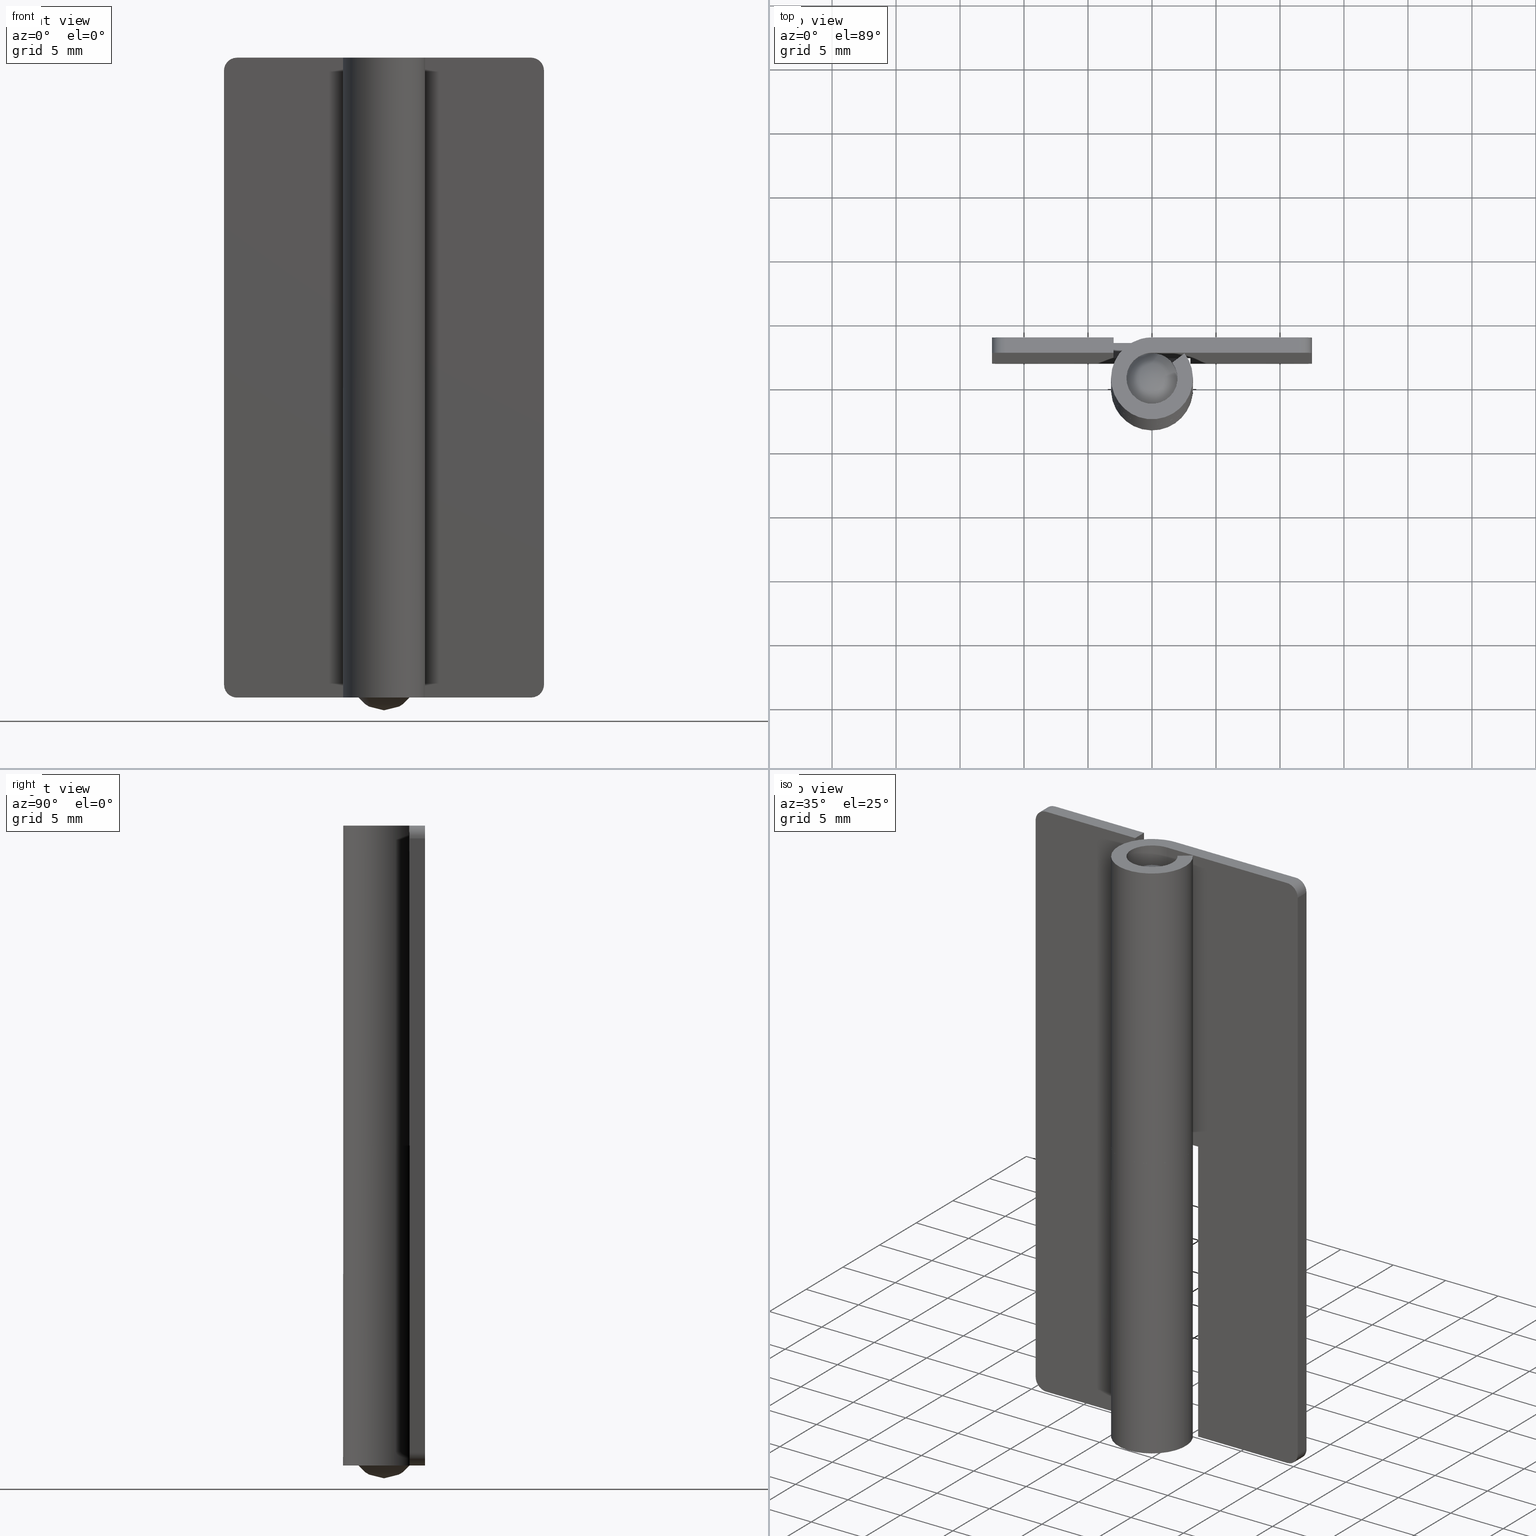
[diagram: canonical four-view strip — front | top / right | iso, engineering-drawing reading convention]
A machine part, canonical four-view strip (front | top / right | iso — engineering-drawing reading convention). The complete STEP part file that produces these views, byte-faithful:
ISO-10303-21;
HEADER;
/****************************************************************
 * Generated by software with PDE/Lib inside                    *
 * PDElib Version 4.4.1-0003, patched  Thursday August 19 11:58 *
 * International Technegroup Inc. (www.iti-oh.com)              *
 ****************************************************************/
FILE_DESCRIPTION((''),'2;1');
FILE_NAME('','2005-04-20T09:26:18',(''),(''),'','CADfix','');
FILE_SCHEMA(('AUTOMOTIVE_DESIGN'));
ENDSEC;
DATA;
#5=APPLICATION_CONTEXT('automotive design');
#6=APPLICATION_PROTOCOL_DEFINITION('Draft International Standard','automotive_design',1998,#5);
#7=PRODUCT_CONTEXT('None',#5,'mechanical');
#8=PRODUCT('shaft','','None',(#7));
#9=PRODUCT_RELATED_PRODUCT_CATEGORY('part','description',(#8));
#10=PRODUCT_DEFINITION_FORMATION('None','None',#8);
#11=PRODUCT_DEFINITION_CONTEXT('part definition',#5,'design');
#12=PRODUCT_DEFINITION('None','None',#10,#11);
#18=(NAMED_UNIT(*)PLANE_ANGLE_UNIT()SI_UNIT($,.RADIAN.));
#19=DIMENSIONAL_EXPONENTS(0.0,0.0,0.0,0.0,0.0,0.0,0.0);
#20=PLANE_ANGLE_MEASURE_WITH_UNIT(PLANE_ANGLE_MEASURE(0.017453292500000),#18);
#24=(CONVERSION_BASED_UNIT('DEGREE',#20)NAMED_UNIT(#19)PLANE_ANGLE_UNIT());
#28=(NAMED_UNIT(*)SI_UNIT($,.STERADIAN.)SOLID_ANGLE_UNIT());
#32=(LENGTH_UNIT()NAMED_UNIT(*)SI_UNIT(.MILLI.,.METRE.));
#34=UNCERTAINTY_MEASURE_WITH_UNIT(LENGTH_MEASURE(0.001000000000000),#32,'DISTANCE_ACCURACY_VALUE','');
#36=(GEOMETRIC_REPRESENTATION_CONTEXT(3)GLOBAL_UNCERTAINTY_ASSIGNED_CONTEXT((#34))GLOBAL_UNIT_ASSIGNED_CONTEXT((#24,#28,#32))REPRESENTATION_CONTEXT('None','None'));
#37=AXIS2_PLACEMENT_3D('',#38,#39,#40);
#38=CARTESIAN_POINT('',(0.0,0.0,0.0));
#39=DIRECTION('',(0.0,0.0,1.0));
#40=DIRECTION('',(1.0,0.0,0.0));
#41=ADVANCED_BREP_SHAPE_REPRESENTATION('',(#37,#293,#1327),#36);
#42=PRODUCT_DEFINITION_SHAPE('','',#12);
#43=SHAPE_DEFINITION_REPRESENTATION(#42,#41);
#44=CARTESIAN_POINT('',(-0.236068471309258,1.986019069517292,49.199999976328606));
#45=CARTESIAN_POINT('',(-0.179229458791175,1.992775247744287,49.199999976328598));
#46=CARTESIAN_POINT('',(-0.122097080101932,1.996269613720351,49.199999976328598));
#47=CARTESIAN_POINT('',(1.874172533618419,2.118366693822284,49.199999976328613));
#48=CARTESIAN_POINT('',(1.996269613720351,0.122097080101932,49.199999976328598));
#49=CARTESIAN_POINT('',(2.118366693822284,-1.874172533618419,49.199999976328613));
#50=CARTESIAN_POINT('',(0.122097080101932,-1.996269613720351,49.199999976328598));
#51=CARTESIAN_POINT('',(-0.236068471309258,1.986019069517292,-1.229999976300406));
#52=CARTESIAN_POINT('',(-0.179229458791175,1.992775247744287,-1.229999976300405));
#53=CARTESIAN_POINT('',(-0.122097080101932,1.996269613720351,-1.229999976300405));
#54=CARTESIAN_POINT('',(1.874172533618419,2.118366693822284,-1.229999976300405));
#55=CARTESIAN_POINT('',(1.996269613720351,0.122097080101932,-1.229999976300405));
#56=CARTESIAN_POINT('',(2.118366693822284,-1.874172533618419,-1.229999976300405));
#57=CARTESIAN_POINT('',(0.122097080101932,-1.996269613720351,-1.229999976300405));
#65=(BOUNDED_SURFACE()B_SPLINE_SURFACE(2,1,((#44,#51),(#45,#52),(#46,#53),(#47,#54),(#48,#55),(#49,#56),(#50,#57)),.UNSPECIFIED.,.F.,.F.,.U.)B_SPLINE_SURFACE_WITH_KNOTS((3,2,2,3),(2,2),(0.0,0.132548341079965,3.446256868079073,6.759965395078182),(0.0,50.429999952629018),.UNSPECIFIED.)GEOMETRIC_REPRESENTATION_ITEM()RATIONAL_B_SPLINE_SURFACE(((0.977505800795127,0.977505800795127),(0.988284271247462,0.988284271247462),(1.0,1.0),(0.707106781186548,0.707106781186548),(1.0,1.0),(0.707106781186548,0.707106781186548),(1.0,1.0)))REPRESENTATION_ITEM('')SURFACE());
#66=CARTESIAN_POINT('',(-0.236068471325678,1.986019069515340,47.999999977455801));
#67=VERTEX_POINT('',#66);
#68=CARTESIAN_POINT('',(2.000000016908155,0.0,47.999999977455801));
#69=VERTEX_POINT('',#68);
#70=CARTESIAN_POINT('',(-0.236068471325679,1.986019069515340,47.999999977455801));
#71=CARTESIAN_POINT('',(-0.118448240321785,2.000000016908155,47.999999977455801));
#72=CARTESIAN_POINT('',(0.0,2.000000016908155,47.999999977455801));
#73=CARTESIAN_POINT('',(2.000000016908155,2.000000016908155,47.999999977455786));
#74=CARTESIAN_POINT('',(2.000000016908155,0.0,47.999999977455801));
#82=(BOUNDED_CURVE()B_SPLINE_CURVE(2,(#70,#71,#72,#73,#74),.UNSPECIFIED.,.F.,.U.)B_SPLINE_CURVE_WITH_KNOTS((3,2,3),(0.229562473512850,0.250000000000000,0.500000000000000),.UNSPECIFIED.)CURVE()GEOMETRIC_REPRESENTATION_ITEM()RATIONAL_B_SPLINE_CURVE((0.956026754182408,0.976055948330373,1.0,0.707106781186548,1.0))REPRESENTATION_ITEM(''));
#83=EDGE_CURVE('',#67,#69,#82,.T.);
#84=ORIENTED_EDGE('',*,*,#83,.T.);
#85=CARTESIAN_POINT('',(0.122097080164815,-1.996269613716506,47.999999977455801));
#86=VERTEX_POINT('',#85);
#87=CARTESIAN_POINT('',(2.000000016908155,0.0,47.999999977455801));
#88=CARTESIAN_POINT('',(2.000000016908155,-1.881412149598245,47.999999977455793));
#89=CARTESIAN_POINT('',(0.122097080164815,-1.996269613716506,47.999999977455801));
#97=(BOUNDED_CURVE()B_SPLINE_CURVE(2,(#87,#88,#89),.UNSPECIFIED.,.F.,.U.)B_SPLINE_CURVE_WITH_KNOTS((3,3),(0.500000000000000,0.739332962231098),.UNSPECIFIED.)CURVE()GEOMETRIC_REPRESENTATION_ITEM()RATIONAL_B_SPLINE_CURVE((1.0,0.719603993295901,0.976072041649905))REPRESENTATION_ITEM(''));
#98=EDGE_CURVE('',#69,#86,#97,.T.);
#99=ORIENTED_EDGE('',*,*,#98,.T.);
#100=CARTESIAN_POINT('',(0.122097080164815,-1.996269613716506,0.000000022544206));
#101=VERTEX_POINT('',#100);
#102=CARTESIAN_POINT('',(0.122097080164815,-1.996269613716506,47.999999977455801));
#103=CARTESIAN_POINT('',(0.122097080164815,-1.996269613716506,0.000000022544206));
#104=QUASI_UNIFORM_CURVE('',1,(#102,#103),.UNSPECIFIED.,.F.,.U.);
#105=EDGE_CURVE('',#86,#101,#104,.T.);
#106=ORIENTED_EDGE('',*,*,#105,.T.);
#107=CARTESIAN_POINT('',(2.000000016908155,0.0,0.000000022544206));
#108=VERTEX_POINT('',#107);
#109=CARTESIAN_POINT('',(2.000000016908155,0.0,0.000000022544206));
#110=CARTESIAN_POINT('',(2.000000016908155,-1.881412149598245,0.000000022544206));
#111=CARTESIAN_POINT('',(0.122097080164815,-1.996269613716506,0.000000022544206));
#119=(BOUNDED_CURVE()B_SPLINE_CURVE(2,(#109,#110,#111),.UNSPECIFIED.,.F.,.U.)B_SPLINE_CURVE_WITH_KNOTS((3,3),(0.500000000000000,0.739332962231098),.UNSPECIFIED.)CURVE()GEOMETRIC_REPRESENTATION_ITEM()RATIONAL_B_SPLINE_CURVE((1.0,0.719603993295901,0.976072041649905))REPRESENTATION_ITEM(''));
#120=EDGE_CURVE('',#108,#101,#119,.T.);
#121=ORIENTED_EDGE('',*,*,#120,.F.);
#122=CARTESIAN_POINT('',(-0.236068471325678,1.986019069515340,0.000000022544206));
#123=VERTEX_POINT('',#122);
#124=CARTESIAN_POINT('',(-0.236068471325678,1.986019069515340,0.000000022544206));
#125=CARTESIAN_POINT('',(-0.118448240321785,2.000000016908155,0.000000022544206));
#126=CARTESIAN_POINT('',(0.0,2.000000016908155,0.000000022544206));
#127=CARTESIAN_POINT('',(2.000000016908155,2.000000016908155,0.000000022544206));
#128=CARTESIAN_POINT('',(2.000000016908155,0.0,0.000000022544206));
#136=(BOUNDED_CURVE()B_SPLINE_CURVE(2,(#124,#125,#126,#127,#128),.UNSPECIFIED.,.F.,.U.)B_SPLINE_CURVE_WITH_KNOTS((3,2,3),(0.229562473512850,0.250000000000000,0.500000000000000),.UNSPECIFIED.)CURVE()GEOMETRIC_REPRESENTATION_ITEM()RATIONAL_B_SPLINE_CURVE((0.956026754182408,0.976055948330373,1.0,0.707106781186548,1.0))REPRESENTATION_ITEM(''));
#137=EDGE_CURVE('',#123,#108,#136,.T.);
#138=ORIENTED_EDGE('',*,*,#137,.F.);
#139=CARTESIAN_POINT('',(-0.236068471325678,1.986019069515340,47.999999977455801));
#140=CARTESIAN_POINT('',(-0.236068471325678,1.986019069515340,0.000000022544206));
#141=QUASI_UNIFORM_CURVE('',1,(#139,#140),.UNSPECIFIED.,.F.,.U.);
#142=EDGE_CURVE('',#67,#123,#141,.T.);
#143=ORIENTED_EDGE('',*,*,#142,.F.);
#144=EDGE_LOOP('',(#84,#99,#106,#121,#138,#143));
#145=FACE_OUTER_BOUND('',#144,.T.);
#146=ADVANCED_FACE('',(#145),#65,.T.);
#147=CARTESIAN_POINT('',(0.122097080101932,-1.996269613720351,49.199999976328598));
#148=CARTESIAN_POINT('',(-1.874172533618419,-2.118366693822284,49.199999976328613));
#149=CARTESIAN_POINT('',(-1.996269613720351,-0.122097080101932,49.199999976328598));
#150=CARTESIAN_POINT('',(-2.111572411316451,1.763086996584275,49.199999976328613));
#151=CARTESIAN_POINT('',(-0.236068471309258,1.986019069517292,49.199999976328606));
#152=CARTESIAN_POINT('',(0.122097080101932,-1.996269613720351,-1.229999976300405));
#153=CARTESIAN_POINT('',(-1.874172533618419,-2.118366693822284,-1.229999976300405));
#154=CARTESIAN_POINT('',(-1.996269613720351,-0.122097080101932,-1.229999976300405));
#155=CARTESIAN_POINT('',(-2.111572411316451,1.763086996584275,-1.229999976300405));
#156=CARTESIAN_POINT('',(-0.236068471309258,1.986019069517292,-1.229999976300406));
#164=(BOUNDED_SURFACE()B_SPLINE_SURFACE(2,1,((#147,#152),(#148,#153),(#149,#154),(#150,#155),(#151,#156)),.UNSPECIFIED.,.F.,.F.,.U.)B_SPLINE_SURFACE_WITH_KNOTS((3,2,3),(2,2),(0.0,3.313708526999109,6.494868712918253),(0.0,50.429999952629032),.UNSPECIFIED.)GEOMETRIC_REPRESENTATION_ITEM()RATIONAL_B_SPLINE_SURFACE(((1.0,1.0),(0.707106781186548,0.707106781186548),(1.0,1.0),(0.718822509939086,0.718822509939086),(0.977505800795127,0.977505800795127)))REPRESENTATION_ITEM('')SURFACE());
#165=CARTESIAN_POINT('',(-2.000000016908155,0.0,47.999999977455801));
#166=VERTEX_POINT('',#165);
#167=CARTESIAN_POINT('',(-2.000000016908155,0.0,47.999999977455801));
#168=CARTESIAN_POINT('',(-2.000000016908155,1.776349066890546,47.999999977455793));
#169=CARTESIAN_POINT('',(-0.236068471325679,1.986019069515340,47.999999977455801));
#177=(BOUNDED_CURVE()B_SPLINE_CURVE(2,(#167,#168,#169),.UNSPECIFIED.,.F.,.U.)B_SPLINE_CURVE_WITH_KNOTS((3,3),(0.0,0.229562473512850),.UNSPECIFIED.)CURVE()GEOMETRIC_REPRESENTATION_ITEM()RATIONAL_B_SPLINE_CURVE((1.0,0.731050832856174,0.956026754182408))REPRESENTATION_ITEM(''));
#178=EDGE_CURVE('',#166,#67,#177,.T.);
#179=ORIENTED_EDGE('',*,*,#178,.T.);
#180=ORIENTED_EDGE('',*,*,#142,.T.);
#181=CARTESIAN_POINT('',(-2.000000016908155,0.0,0.000000022544206));
#182=VERTEX_POINT('',#181);
#183=CARTESIAN_POINT('',(-2.000000016908155,0.0,0.000000022544206));
#184=CARTESIAN_POINT('',(-2.000000016908155,1.776349066890548,0.000000022544206));
#185=CARTESIAN_POINT('',(-0.236068471325679,1.986019069515340,0.000000022544206));
#193=(BOUNDED_CURVE()B_SPLINE_CURVE(2,(#183,#184,#185),.UNSPECIFIED.,.F.,.U.)B_SPLINE_CURVE_WITH_KNOTS((3,3),(0.0,0.229562473512850),.UNSPECIFIED.)CURVE()GEOMETRIC_REPRESENTATION_ITEM()RATIONAL_B_SPLINE_CURVE((1.0,0.731050832856174,0.956026754182408))REPRESENTATION_ITEM(''));
#194=EDGE_CURVE('',#182,#123,#193,.T.);
#195=ORIENTED_EDGE('',*,*,#194,.F.);
#196=CARTESIAN_POINT('',(0.122097080164815,-1.996269613716505,0.000000022544206));
#197=CARTESIAN_POINT('',(0.061105527176828,-2.000000016908155,0.000000022544206));
#198=CARTESIAN_POINT('',(0.0,-2.000000016908155,0.000000022544206));
#199=CARTESIAN_POINT('',(-2.000000016908155,-2.000000016908155,0.000000022544206));
#200=CARTESIAN_POINT('',(-2.000000016908155,0.0,0.000000022544206));
#208=(BOUNDED_CURVE()B_SPLINE_CURVE(2,(#196,#197,#198,#199,#200),.UNSPECIFIED.,.F.,.U.)B_SPLINE_CURVE_WITH_KNOTS((3,2,3),(0.739332962231098,0.750000000000000,1.0),.UNSPECIFIED.)CURVE()GEOMETRIC_REPRESENTATION_ITEM()RATIONAL_B_SPLINE_CURVE((0.976072041649904,0.987502787890646,1.0,0.707106781186548,1.0))REPRESENTATION_ITEM(''));
#209=EDGE_CURVE('',#101,#182,#208,.T.);
#210=ORIENTED_EDGE('',*,*,#209,.F.);
#211=ORIENTED_EDGE('',*,*,#105,.F.);
#212=CARTESIAN_POINT('',(0.122097080164815,-1.996269613716505,47.999999977455801));
#213=CARTESIAN_POINT('',(0.061105527176828,-2.000000016908155,47.999999977455801));
#214=CARTESIAN_POINT('',(0.0,-2.000000016908155,47.999999977455801));
#215=CARTESIAN_POINT('',(-2.000000016908155,-2.000000016908155,47.999999977455786));
#216=CARTESIAN_POINT('',(-2.000000016908155,0.0,47.999999977455801));
#224=(BOUNDED_CURVE()B_SPLINE_CURVE(2,(#212,#213,#214,#215,#216),.UNSPECIFIED.,.F.,.U.)B_SPLINE_CURVE_WITH_KNOTS((3,2,3),(0.739332962231098,0.750000000000000,1.0),.UNSPECIFIED.)CURVE()GEOMETRIC_REPRESENTATION_ITEM()RATIONAL_B_SPLINE_CURVE((0.976072041649904,0.987502787890646,1.0,0.707106781186548,1.0))REPRESENTATION_ITEM(''));
#225=EDGE_CURVE('',#86,#166,#224,.T.);
#226=ORIENTED_EDGE('',*,*,#225,.T.);
#227=EDGE_LOOP('',(#179,#180,#195,#210,#211,#226));
#228=FACE_OUTER_BOUND('',#227,.T.);
#229=ADVANCED_FACE('',(#228),#164,.T.);
#230=CARTESIAN_POINT('',(-1.713371560615220,-1.713333714347708,47.115504247389424));
#231=CARTESIAN_POINT('',(-1.055621620532510,-2.111196606302123,47.838973072745844));
#232=CARTESIAN_POINT('',(1.055621620532508,-2.111196606302123,47.838973072745844));
#233=CARTESIAN_POINT('',(1.713371560615218,-1.713333714347708,47.115504247389424));
#234=CARTESIAN_POINT('',(-2.111221582883406,-1.055587474299456,47.838933690653604));
#235=CARTESIAN_POINT('',(-1.374874999810141,-1.374844630514751,49.0));
#236=CARTESIAN_POINT('',(1.374874999810137,-1.374844630514751,49.0));
#237=CARTESIAN_POINT('',(2.111221582883403,-1.055587474299456,47.838933690653604));
#238=CARTESIAN_POINT('',(-2.111221582883406,1.055593334327881,47.838933690653604));
#239=CARTESIAN_POINT('',(-1.374874999810141,1.374852262879486,49.0));
#240=CARTESIAN_POINT('',(1.374874999810137,1.374852262879486,49.0));
#241=CARTESIAN_POINT('',(2.111221582883403,1.055593334327882,47.838933690653604));
#242=CARTESIAN_POINT('',(-1.713367975749352,1.713339641007028,47.115497728858898));
#243=CARTESIAN_POINT('',(-1.055618898983619,2.111202883471439,47.838963175304620));
#244=CARTESIAN_POINT('',(1.055618898983618,2.111202883471439,47.838963175304620));
#245=CARTESIAN_POINT('',(1.713367975749351,1.713339641007028,47.115497728858898));
#253=(BOUNDED_SURFACE()B_SPLINE_SURFACE(2,2,((#230,#234,#238,#242),(#231,#235,#239,#243),(#232,#236,#240,#244),(#233,#237,#241,#245)),.UNSPECIFIED.,.F.,.F.,.U.)B_SPLINE_SURFACE_WITH_KNOTS((3,1,3),(3,1,3),(0.0,2.388554753907767,4.777109507815533),(0.0,2.388501993675092,4.777017246970934),.UNSPECIFIED.)GEOMETRIC_REPRESENTATION_ITEM()RATIONAL_B_SPLINE_SURFACE(((1.604876643705308,1.302445002416469,1.302445002416469,1.604880001575645),(1.302431641288838,1.0,1.0,1.302434999159176),(1.302431641288838,1.0,1.0,1.302434999159176),(1.604876643705308,1.302445002416469,1.302445002416469,1.604880001575645)))REPRESENTATION_ITEM('')SURFACE());
#254=ORIENTED_EDGE('',*,*,#225,.F.);
#255=ORIENTED_EDGE('',*,*,#98,.F.);
#256=ORIENTED_EDGE('',*,*,#83,.F.);
#257=ORIENTED_EDGE('',*,*,#178,.F.);
#258=EDGE_LOOP('',(#254,#255,#256,#257));
#259=FACE_OUTER_BOUND('',#258,.T.);
#260=ADVANCED_FACE('',(#259),#253,.T.);
#261=CARTESIAN_POINT('',(-1.713367954161556,1.713339685596381,0.884502335168733));
#262=CARTESIAN_POINT('',(-1.055618884543868,2.111202936136454,0.161036907734641));
#263=CARTESIAN_POINT('',(1.055618876549225,2.111202936136454,0.161036907734641));
#264=CARTESIAN_POINT('',(1.713367946076265,1.713339690487060,0.884502326275633));
#265=CARTESIAN_POINT('',(-2.111221591874517,1.055593379595070,0.161066323523518));
#266=CARTESIAN_POINT('',(-1.374875010742746,1.374852326914818,-0.999999999999999));
#267=CARTESIAN_POINT('',(1.374875000330243,1.374852326914818,-0.999999999999999));
#268=CARTESIAN_POINT('',(2.111221583311144,1.055593383307904,0.161066310020852));
#269=CARTESIAN_POINT('',(-2.111221591874517,-1.055587447615429,0.161066323523518));
#270=CARTESIAN_POINT('',(-1.374875010742746,-1.374844600837553,-0.999999999999999));
#271=CARTESIAN_POINT('',(1.374875000330243,-1.374844600837553,-0.999999999999999));
#272=CARTESIAN_POINT('',(2.111221583311144,-1.055587451328243,0.161066310020852));
#273=CARTESIAN_POINT('',(-1.713371583043529,-1.713333686167819,0.884495736601688));
#274=CARTESIAN_POINT('',(-1.055621639508799,-2.111196581894258,0.161026888769609));
#275=CARTESIAN_POINT('',(1.055621631514135,-2.111196581894258,0.161026888769609));
#276=CARTESIAN_POINT('',(1.713371574958233,-1.713333691058493,0.884495727708550));
#284=(BOUNDED_SURFACE()B_SPLINE_SURFACE(2,2,((#261,#265,#269,#273),(#262,#266,#270,#274),(#263,#267,#271,#275),(#264,#268,#272,#276)),.UNSPECIFIED.,.F.,.F.,.U.)B_SPLINE_SURFACE_WITH_KNOTS((3,1,3),(3,1,3),(0.0,2.388554779554577,4.777109541019630),(0.0,2.388515371197314,4.777017319968128),.UNSPECIFIED.)GEOMETRIC_REPRESENTATION_ITEM()RATIONAL_B_SPLINE_SURFACE(((1.604880034558073,1.302445007226379,1.302445007226379,1.604876635458727),(1.302435027331695,1.0,1.0,1.302431628232348),(1.302435027331695,1.0,1.0,1.302431628232348),(1.604880029976988,1.302445002645294,1.302445002645294,1.604876630877641)))REPRESENTATION_ITEM('')SURFACE());
#285=ORIENTED_EDGE('',*,*,#194,.T.);
#286=ORIENTED_EDGE('',*,*,#137,.T.);
#287=ORIENTED_EDGE('',*,*,#120,.T.);
#288=ORIENTED_EDGE('',*,*,#209,.T.);
#289=EDGE_LOOP('',(#285,#286,#287,#288));
#290=FACE_OUTER_BOUND('',#289,.T.);
#291=ADVANCED_FACE('',(#290),#284,.T.);
#292=CLOSED_SHELL('',(#146,#229,#260,#291));
#293=MANIFOLD_SOLID_BREP('shaft',#292);
#294=APPLICATION_CONTEXT('automotive design');
#295=APPLICATION_PROTOCOL_DEFINITION('Draft International Standard','automotive_design',1998,#294);
#296=PRODUCT_CONTEXT('None',#294,'mechanical');
#297=PRODUCT('hinge piece_B','','None',(#296));
#298=PRODUCT_RELATED_PRODUCT_CATEGORY('part','description',(#297));
#299=PRODUCT_DEFINITION_FORMATION('None','None',#297);
#300=PRODUCT_DEFINITION_CONTEXT('part definition',#294,'design');
#301=PRODUCT_DEFINITION('None','None',#299,#300);
#307=(NAMED_UNIT(*)PLANE_ANGLE_UNIT()SI_UNIT($,.RADIAN.));
#308=DIMENSIONAL_EXPONENTS(0.0,0.0,0.0,0.0,0.0,0.0,0.0);
#309=PLANE_ANGLE_MEASURE_WITH_UNIT(PLANE_ANGLE_MEASURE(0.017453292500000),#307);
#313=(CONVERSION_BASED_UNIT('DEGREE',#309)NAMED_UNIT(#308)PLANE_ANGLE_UNIT());
#317=(NAMED_UNIT(*)SI_UNIT($,.STERADIAN.)SOLID_ANGLE_UNIT());
#321=(LENGTH_UNIT()NAMED_UNIT(*)SI_UNIT(.MILLI.,.METRE.));
#323=UNCERTAINTY_MEASURE_WITH_UNIT(LENGTH_MEASURE(0.001000000000000),#321,'DISTANCE_ACCURACY_VALUE','');
#325=(GEOMETRIC_REPRESENTATION_CONTEXT(3)GLOBAL_UNCERTAINTY_ASSIGNED_CONTEXT((#323))GLOBAL_UNIT_ASSIGNED_CONTEXT((#313,#317,#321))REPRESENTATION_CONTEXT('None','None'));
#326=AXIS2_PLACEMENT_3D('',#327,#328,#329);
#327=CARTESIAN_POINT('',(0.0,0.0,0.0));
#328=DIRECTION('',(0.0,0.0,1.0));
#329=DIRECTION('',(1.0,0.0,0.0));
#330=ADVANCED_BREP_SHAPE_REPRESENTATION('',(#326,#790,#1343),#325);
#331=PRODUCT_DEFINITION_SHAPE('','',#301);
#332=SHAPE_DEFINITION_REPRESENTATION(#331,#330);
#333=CARTESIAN_POINT('',(3.0,1.940059952375837,26.248749951545150));
#334=CARTESIAN_POINT('',(3.0,1.940059952375837,-1.248750622097403));
#335=CARTESIAN_POINT('',(3.0,3.259941079810654,26.248749951545150));
#336=CARTESIAN_POINT('',(3.0,3.259941079810654,-1.248750622097403));
#337=B_SPLINE_SURFACE_WITH_KNOTS('',1,1,((#333,#335),(#334,#336)),.UNSPECIFIED.,.F.,.F.,.U.,(2,2),(2,2),(0.0,27.497500573642551),(0.041708334948495,0.958291687403247),.UNSPECIFIED.);
#338=CARTESIAN_POINT('',(3.0,2.0,0.0));
#339=VERTEX_POINT('',#338);
#340=CARTESIAN_POINT('',(3.0,2.0,25.0));
#341=VERTEX_POINT('',#340);
#342=CARTESIAN_POINT('',(3.0,2.0,0.0));
#343=CARTESIAN_POINT('',(3.0,2.0,25.0));
#344=QUASI_UNIFORM_CURVE('',1,(#342,#343),.UNSPECIFIED.,.F.,.U.);
#345=EDGE_CURVE('',#339,#341,#344,.T.);
#346=ORIENTED_EDGE('',*,*,#345,.T.);
#347=CARTESIAN_POINT('',(3.0,3.200000999999955,25.0));
#348=VERTEX_POINT('',#347);
#349=CARTESIAN_POINT('',(3.0,3.200000999999955,25.0));
#350=CARTESIAN_POINT('',(3.0,2.0,25.0));
#351=QUASI_UNIFORM_CURVE('',1,(#349,#350),.UNSPECIFIED.,.F.,.U.);
#352=EDGE_CURVE('',#348,#341,#351,.T.);
#353=ORIENTED_EDGE('',*,*,#352,.F.);
#354=CARTESIAN_POINT('',(3.0,3.200000999999955,0.0));
#355=VERTEX_POINT('',#354);
#356=CARTESIAN_POINT('',(3.0,3.200000999999955,0.0));
#357=CARTESIAN_POINT('',(3.0,3.200000999999955,25.0));
#358=QUASI_UNIFORM_CURVE('',1,(#356,#357),.UNSPECIFIED.,.F.,.U.);
#359=EDGE_CURVE('',#355,#348,#358,.T.);
#360=ORIENTED_EDGE('',*,*,#359,.F.);
#361=CARTESIAN_POINT('',(3.0,3.200000999999955,0.0));
#362=CARTESIAN_POINT('',(3.0,2.0,0.0));
#363=QUASI_UNIFORM_CURVE('',1,(#361,#362),.UNSPECIFIED.,.F.,.U.);
#364=EDGE_CURVE('',#355,#339,#363,.T.);
#365=ORIENTED_EDGE('',*,*,#364,.T.);
#366=EDGE_LOOP('',(#346,#353,#360,#365));
#367=FACE_OUTER_BOUND('',#366,.T.);
#368=ADVANCED_FACE('',(#367),#337,.F.);
#369=CARTESIAN_POINT('',(3.513426449797382,-3.509201653153730,25.0));
#370=CARTESIAN_POINT('',(-3.516769488861777,-3.509201653153729,25.0));
#371=CARTESIAN_POINT('',(3.513426449797382,3.519182713505180,25.0));
#372=CARTESIAN_POINT('',(-3.516769488861777,3.519182713505180,25.0));
#373=B_SPLINE_SURFACE_WITH_KNOTS('',1,1,((#369,#371),(#370,#372)),.UNSPECIFIED.,.F.,.F.,.U.,(2,2),(2,2),(0.0,7.030195938659158),(0.0,7.028384366658909),.UNSPECIFIED.);
#374=CARTESIAN_POINT('',(1.585764307045660,1.218750000000000,25.0));
#375=VERTEX_POINT('',#374);
#376=CARTESIAN_POINT('',(2.537223684155205,1.950000609375005,25.0));
#377=VERTEX_POINT('',#376);
#378=CARTESIAN_POINT('',(1.585764307045660,1.218750000000000,25.0));
#379=CARTESIAN_POINT('',(2.537223684155205,1.950000609375005,25.0));
#380=QUASI_UNIFORM_CURVE('',1,(#378,#379),.UNSPECIFIED.,.F.,.U.);
#381=EDGE_CURVE('',#375,#377,#380,.T.);
#382=ORIENTED_EDGE('',*,*,#381,.T.);
#383=CARTESIAN_POINT('',(-5.878144E-016,3.200001000000000,25.0));
#384=VERTEX_POINT('',#383);
#385=CARTESIAN_POINT('',(2.537223684155205,1.950000609375005,25.0));
#386=CARTESIAN_POINT('',(4.085161598527525,-0.064083242222381,25.0));
#387=CARTESIAN_POINT('',(2.474811676580616,-2.028623564257609,25.0));
#388=CARTESIAN_POINT('',(0.864461754633708,-3.993163886292836,25.0));
#389=CARTESIAN_POINT('',(-1.414214004314828,-2.870540915925223,25.0));
#390=CARTESIAN_POINT('',(-3.692889763263367,-1.747917945557609,25.0));
#391=CARTESIAN_POINT('',(-3.116547785732045,0.726041527221197,25.0));
#392=CARTESIAN_POINT('',(-2.540205808200723,3.200001000000000,25.0));
#393=CARTESIAN_POINT('',(0.0,3.200001000000000,25.0));
#401=(BOUNDED_CURVE()B_SPLINE_CURVE(2,(#385,#386,#387,#388,#389,#390,#391,#392,#393),.UNSPECIFIED.,.F.,.U.)B_SPLINE_CURVE_WITH_KNOTS((3,2,2,2,3),(0.0,0.250000000000000,0.500000000000000,0.750000000000000,1.0),.UNSPECIFIED.)CURVE()GEOMETRIC_REPRESENTATION_ITEM()RATIONAL_B_SPLINE_CURVE((1.0,0.783226629512223,1.0,0.783226629512223,1.0,0.783226629512223,1.0,0.783226629512223,1.0))REPRESENTATION_ITEM(''));
#402=EDGE_CURVE('',#377,#384,#401,.T.);
#403=ORIENTED_EDGE('',*,*,#402,.T.);
#404=CARTESIAN_POINT('',(3.0,3.200000999999955,25.0));
#405=CARTESIAN_POINT('',(-5.878144E-016,3.200001000000000,25.0));
#406=QUASI_UNIFORM_CURVE('',1,(#404,#405),.UNSPECIFIED.,.F.,.U.);
#407=EDGE_CURVE('',#348,#384,#406,.T.);
#408=ORIENTED_EDGE('',*,*,#407,.F.);
#409=ORIENTED_EDGE('',*,*,#352,.T.);
#410=CARTESIAN_POINT('',(0.0,2.0,25.0));
#411=VERTEX_POINT('',#410);
#412=CARTESIAN_POINT('',(3.0,2.0,25.0));
#413=CARTESIAN_POINT('',(0.0,2.0,25.0));
#414=QUASI_UNIFORM_CURVE('',1,(#412,#413),.UNSPECIFIED.,.F.,.U.);
#415=EDGE_CURVE('',#341,#411,#414,.T.);
#416=ORIENTED_EDGE('',*,*,#415,.T.);
#417=CARTESIAN_POINT('',(1.585764307045660,1.218750000000000,25.0));
#418=CARTESIAN_POINT('',(2.553225201196827,-0.040052013872739,25.000000000000007));
#419=CARTESIAN_POINT('',(1.546756814501378,-1.267889331445592,25.0));
#420=CARTESIAN_POINT('',(0.540288427805929,-2.495726649018446,25.000000000000007));
#421=CARTESIAN_POINT('',(-0.883883476483184,-1.794087511800915,25.0));
#422=CARTESIAN_POINT('',(-2.308055380772298,-1.092448374583386,25.000000000000007));
#423=CARTESIAN_POINT('',(-1.947841757381979,0.453775812708307,25.0));
#424=CARTESIAN_POINT('',(-1.587628133991660,2.0,25.000000000000007));
#425=CARTESIAN_POINT('',(0.0,2.0,25.0));
#433=(BOUNDED_CURVE()B_SPLINE_CURVE(2,(#417,#418,#419,#420,#421,#422,#423,#424,#425),.UNSPECIFIED.,.F.,.U.)B_SPLINE_CURVE_WITH_KNOTS((3,2,2,2,3),(0.0,0.250000000000000,0.500000000000000,0.750000000000000,1.0),.UNSPECIFIED.)CURVE()GEOMETRIC_REPRESENTATION_ITEM()RATIONAL_B_SPLINE_CURVE((1.0,0.783226629512223,1.0,0.783226629512223,1.0,0.783226629512223,1.0,0.783226629512223,1.0))REPRESENTATION_ITEM(''));
#434=EDGE_CURVE('',#375,#411,#433,.T.);
#435=ORIENTED_EDGE('',*,*,#434,.F.);
#436=EDGE_LOOP('',(#382,#403,#408,#409,#416,#435));
#437=FACE_OUTER_BOUND('',#436,.T.);
#438=ADVANCED_FACE('',(#437),#373,.T.);
#439=CARTESIAN_POINT('',(11.456380612634661,3.230001025000000,49.999048221581859));
#440=CARTESIAN_POINT('',(11.456380612634661,1.969249974375000,49.999048221581859));
#441=CARTESIAN_POINT('',(12.576060264459038,3.230001024999999,50.047934490935972));
#442=CARTESIAN_POINT('',(12.576060264459038,1.969249974375000,50.047934490935972));
#443=CARTESIAN_POINT('',(12.497542913231923,3.230001025000000,48.929941907956461));
#444=CARTESIAN_POINT('',(12.497542913231923,1.969249974375000,48.929941907956461));
#452=(BOUNDED_SURFACE()B_SPLINE_SURFACE(1,2,((#439,#441,#443),(#440,#442,#444)),.UNSPECIFIED.,.F.,.F.,.U.)B_SPLINE_SURFACE_WITH_KNOTS((2,2),(3,3),(0.0,1.0),(0.0,0.994386594966985),.UNSPECIFIED.)GEOMETRIC_REPRESENTATION_ITEM()RATIONAL_B_SPLINE_SURFACE(((1.0,0.664513898535122,0.996233561259061),(1.0,0.664513898535122,0.996233561259061)))REPRESENTATION_ITEM('')SURFACE());
#453=CARTESIAN_POINT('',(12.500000000000000,2.0,49.0));
#454=VERTEX_POINT('',#453);
#455=CARTESIAN_POINT('',(11.500000000000000,2.0,50.0));
#456=VERTEX_POINT('',#455);
#457=CARTESIAN_POINT('',(12.500000000000000,2.0,49.0));
#458=CARTESIAN_POINT('',(12.500000000000000,2.000000000000000,50.0));
#459=CARTESIAN_POINT('',(11.500000000000000,2.0,50.0));
#467=(BOUNDED_CURVE()B_SPLINE_CURVE(2,(#457,#458,#459),.UNSPECIFIED.,.F.,.U.)CURVE()GEOMETRIC_REPRESENTATION_ITEM()QUASI_UNIFORM_CURVE()RATIONAL_B_SPLINE_CURVE((1.0,0.707106781186548,1.0))REPRESENTATION_ITEM(''));
#468=EDGE_CURVE('',#454,#456,#467,.T.);
#469=ORIENTED_EDGE('',*,*,#468,.F.);
#470=CARTESIAN_POINT('',(12.500000000000000,3.200000999999955,49.0));
#471=VERTEX_POINT('',#470);
#472=CARTESIAN_POINT('',(12.500000000000000,3.200000999999955,49.0));
#473=CARTESIAN_POINT('',(12.500000000000000,2.0,49.0));
#474=QUASI_UNIFORM_CURVE('',1,(#472,#473),.UNSPECIFIED.,.F.,.U.);
#475=EDGE_CURVE('',#471,#454,#474,.T.);
#476=ORIENTED_EDGE('',*,*,#475,.F.);
#477=CARTESIAN_POINT('',(11.500000000000000,3.200001000000000,50.0));
#478=VERTEX_POINT('',#477);
#479=CARTESIAN_POINT('',(12.500000000000000,3.200000999999955,49.0));
#480=CARTESIAN_POINT('',(12.500000000000000,3.200000999999956,50.0));
#481=CARTESIAN_POINT('',(11.500000000000000,3.200000999999955,50.0));
#489=(BOUNDED_CURVE()B_SPLINE_CURVE(2,(#479,#480,#481),.UNSPECIFIED.,.F.,.U.)CURVE()GEOMETRIC_REPRESENTATION_ITEM()QUASI_UNIFORM_CURVE()RATIONAL_B_SPLINE_CURVE((1.0,0.707106781186548,1.0))REPRESENTATION_ITEM(''));
#490=EDGE_CURVE('',#471,#478,#489,.T.);
#491=ORIENTED_EDGE('',*,*,#490,.T.);
#492=CARTESIAN_POINT('',(11.500000000000000,3.200001000000000,50.0));
#493=CARTESIAN_POINT('',(11.500000000000000,2.0,50.0));
#494=QUASI_UNIFORM_CURVE('',1,(#492,#493),.UNSPECIFIED.,.F.,.U.);
#495=EDGE_CURVE('',#478,#456,#494,.T.);
#496=ORIENTED_EDGE('',*,*,#495,.T.);
#497=EDGE_LOOP('',(#469,#476,#491,#496));
#498=FACE_OUTER_BOUND('',#497,.T.);
#499=ADVANCED_FACE('',(#498),#452,.T.);
#500=CARTESIAN_POINT('',(12.499657324975560,3.230001024999954,1.026176948307874));
#501=CARTESIAN_POINT('',(12.499657324975560,1.969249974375001,1.026176948307874));
#502=CARTESIAN_POINT('',(12.528492260166264,3.230001024999955,-0.074984800554718));
#503=CARTESIAN_POINT('',(12.528492260166264,1.969249974375000,-0.074984800554718));
#504=CARTESIAN_POINT('',(11.429679924374016,3.230001024999955,0.002475520619192));
#505=CARTESIAN_POINT('',(11.429679924374016,1.969249974375001,0.002475520619192));
#513=(BOUNDED_SURFACE()B_SPLINE_SURFACE(1,2,((#500,#502,#504),(#501,#503,#505)),.UNSPECIFIED.,.F.,.F.,.U.)B_SPLINE_SURFACE_WITH_KNOTS((2,2),(3,3),(0.0,1.0),(0.0,0.994518632334191),.UNSPECIFIED.)GEOMETRIC_REPRESENTATION_ITEM()RATIONAL_B_SPLINE_SURFACE(((1.0,0.670944223154768,0.996392648609106),(1.0,0.670944223154768,0.996392648609106)))REPRESENTATION_ITEM('')SURFACE());
#514=CARTESIAN_POINT('',(11.500000000000000,2.0,0.0));
#515=VERTEX_POINT('',#514);
#516=CARTESIAN_POINT('',(12.500000000000000,2.0,1.0));
#517=VERTEX_POINT('',#516);
#518=CARTESIAN_POINT('',(11.500000000000000,2.0,0.0));
#519=CARTESIAN_POINT('',(12.500000000000000,2.000000000000000,0.0));
#520=CARTESIAN_POINT('',(12.500000000000000,2.0,1.0));
#528=(BOUNDED_CURVE()B_SPLINE_CURVE(2,(#518,#519,#520),.UNSPECIFIED.,.F.,.U.)CURVE()GEOMETRIC_REPRESENTATION_ITEM()QUASI_UNIFORM_CURVE()RATIONAL_B_SPLINE_CURVE((1.0,0.707106781186548,1.0))REPRESENTATION_ITEM(''));
#529=EDGE_CURVE('',#515,#517,#528,.T.);
#530=ORIENTED_EDGE('',*,*,#529,.F.);
#531=CARTESIAN_POINT('',(11.500000000000000,3.200000999999955,0.0));
#532=VERTEX_POINT('',#531);
#533=CARTESIAN_POINT('',(11.500000000000000,3.200000999999955,0.0));
#534=CARTESIAN_POINT('',(11.500000000000000,2.0,0.0));
#535=QUASI_UNIFORM_CURVE('',1,(#533,#534),.UNSPECIFIED.,.F.,.U.);
#536=EDGE_CURVE('',#532,#515,#535,.T.);
#537=ORIENTED_EDGE('',*,*,#536,.F.);
#538=CARTESIAN_POINT('',(12.500000000000000,3.200000999999955,1.0));
#539=VERTEX_POINT('',#538);
#540=CARTESIAN_POINT('',(11.500000000000000,3.200000999999955,0.0));
#541=CARTESIAN_POINT('',(12.500000000000000,3.200000999999956,0.0));
#542=CARTESIAN_POINT('',(12.500000000000000,3.200000999999955,1.0));
#550=(BOUNDED_CURVE()B_SPLINE_CURVE(2,(#540,#541,#542),.UNSPECIFIED.,.F.,.U.)CURVE()GEOMETRIC_REPRESENTATION_ITEM()QUASI_UNIFORM_CURVE()RATIONAL_B_SPLINE_CURVE((1.0,0.707106781186548,1.0))REPRESENTATION_ITEM(''));
#551=EDGE_CURVE('',#532,#539,#550,.T.);
#552=ORIENTED_EDGE('',*,*,#551,.T.);
#553=CARTESIAN_POINT('',(12.500000000000000,3.200000999999955,1.0));
#554=CARTESIAN_POINT('',(12.500000000000000,2.0,1.0));
#555=QUASI_UNIFORM_CURVE('',1,(#553,#554),.UNSPECIFIED.,.F.,.U.);
#556=EDGE_CURVE('',#539,#517,#555,.T.);
#557=ORIENTED_EDGE('',*,*,#556,.T.);
#558=EDGE_LOOP('',(#530,#537,#552,#557));
#559=FACE_OUTER_BOUND('',#558,.T.);
#560=ADVANCED_FACE('',(#559),#513,.T.);
#561=CARTESIAN_POINT('',(-3.931645598228938,-3.509202149736047,50.0));
#562=CARTESIAN_POINT('',(12.234140752468130,-3.509202149736047,50.0));
#563=CARTESIAN_POINT('',(-3.931645598228938,3.519182737129452,50.0));
#564=CARTESIAN_POINT('',(12.234140752468130,3.519182737129452,50.0));
#565=B_SPLINE_SURFACE_WITH_KNOTS('',1,1,((#561,#563),(#562,#564)),.UNSPECIFIED.,.F.,.F.,.U.,(2,2),(2,2),(0.0,16.165786350697061),(0.0,7.028384886865498),.UNSPECIFIED.);
#566=CARTESIAN_POINT('',(-3.673819E-016,2.0,50.0));
#567=VERTEX_POINT('',#566);
#568=CARTESIAN_POINT('',(11.500000000000000,2.0,50.0));
#569=CARTESIAN_POINT('',(-3.673819E-016,2.0,50.0));
#570=QUASI_UNIFORM_CURVE('',1,(#568,#569),.UNSPECIFIED.,.F.,.U.);
#571=EDGE_CURVE('',#456,#567,#570,.T.);
#572=ORIENTED_EDGE('',*,*,#571,.F.);
#573=ORIENTED_EDGE('',*,*,#495,.F.);
#574=CARTESIAN_POINT('',(-5.878112E-016,3.200001000000000,50.0));
#575=VERTEX_POINT('',#574);
#576=CARTESIAN_POINT('',(-5.878112E-016,3.200001000000000,50.0));
#577=CARTESIAN_POINT('',(11.500000000000000,3.200001000000000,50.0));
#578=QUASI_UNIFORM_CURVE('',1,(#576,#577),.UNSPECIFIED.,.F.,.U.);
#579=EDGE_CURVE('',#575,#478,#578,.T.);
#580=ORIENTED_EDGE('',*,*,#579,.F.);
#581=CARTESIAN_POINT('',(2.537222891273055,1.950000000000000,50.0));
#582=VERTEX_POINT('',#581);
#583=CARTESIAN_POINT('',(2.537222891273055,1.950000000000000,50.0));
#584=CARTESIAN_POINT('',(4.085160166873110,-0.064084342530174,50.000000000000007));
#585=CARTESIAN_POINT('',(2.474810406489891,-2.028624540394518,50.0));
#586=CARTESIAN_POINT('',(0.864460646106671,-3.993164738258862,50.000000000000007));
#587=CARTESIAN_POINT('',(-1.414214400755910,-2.870541220612721,50.0));
#588=CARTESIAN_POINT('',(-3.692889447618491,-1.747917702966579,50.000000000000007));
#589=CARTESIAN_POINT('',(-3.116547308523479,0.726041893983103,50.0));
#590=CARTESIAN_POINT('',(-2.540205169428466,3.200001490932785,50.000000000000007));
#591=CARTESIAN_POINT('',(-5.878112E-016,3.200001000000000,50.0));
#599=(BOUNDED_CURVE()B_SPLINE_CURVE(2,(#583,#584,#585,#586,#587,#588,#589,#590,#591),.UNSPECIFIED.,.F.,.U.)B_SPLINE_CURVE_WITH_KNOTS((3,2,2,2,3),(0.0,0.250000000000000,0.500000000000000,0.750000000000000,1.0),.UNSPECIFIED.)CURVE()GEOMETRIC_REPRESENTATION_ITEM()RATIONAL_B_SPLINE_CURVE((1.0,0.783226629512223,1.0,0.783226629512223,1.0,0.783226629512223,1.0,0.783226629512223,1.0))REPRESENTATION_ITEM(''));
#600=EDGE_CURVE('',#582,#575,#599,.T.);
#601=ORIENTED_EDGE('',*,*,#600,.F.);
#602=CARTESIAN_POINT('',(1.585764307045660,1.218750000000000,50.0));
#603=VERTEX_POINT('',#602);
#604=CARTESIAN_POINT('',(1.585764307045660,1.218750000000000,50.0));
#605=CARTESIAN_POINT('',(2.537222891273055,1.950000000000000,50.0));
#606=QUASI_UNIFORM_CURVE('',1,(#604,#605),.UNSPECIFIED.,.F.,.U.);
#607=EDGE_CURVE('',#603,#582,#606,.T.);
#608=ORIENTED_EDGE('',*,*,#607,.F.);
#609=CARTESIAN_POINT('',(1.585764307045660,1.218750000000000,50.0));
#610=CARTESIAN_POINT('',(2.553225201196828,-0.040052013872739,50.000000000000007));
#611=CARTESIAN_POINT('',(1.546756814501378,-1.267889331445592,50.0));
#612=CARTESIAN_POINT('',(0.540288427805929,-2.495726649018445,50.000000000000007));
#613=CARTESIAN_POINT('',(-0.883883476483184,-1.794087511800916,50.0));
#614=CARTESIAN_POINT('',(-2.308055380772298,-1.092448374583386,50.000000000000007));
#615=CARTESIAN_POINT('',(-1.947841757381979,0.453775812708307,50.0));
#616=CARTESIAN_POINT('',(-1.587628133991661,2.000000000000000,50.000000000000007));
#617=CARTESIAN_POINT('',(0.0,2.0,50.0));
#625=(BOUNDED_CURVE()B_SPLINE_CURVE(2,(#609,#610,#611,#612,#613,#614,#615,#616,#617),.UNSPECIFIED.,.F.,.U.)B_SPLINE_CURVE_WITH_KNOTS((3,2,2,2,3),(0.0,0.250000000000000,0.500000000000000,0.750000000000000,1.0),.UNSPECIFIED.)CURVE()GEOMETRIC_REPRESENTATION_ITEM()RATIONAL_B_SPLINE_CURVE((1.0,0.783226629512223,1.0,0.783226629512223,1.0,0.783226629512223,1.0,0.783226629512223,1.0))REPRESENTATION_ITEM(''));
#626=EDGE_CURVE('',#603,#567,#625,.T.);
#627=ORIENTED_EDGE('',*,*,#626,.T.);
#628=EDGE_LOOP('',(#572,#573,#580,#601,#608,#627));
#629=FACE_OUTER_BOUND('',#628,.T.);
#630=ADVANCED_FACE('',(#629),#565,.T.);
#631=CARTESIAN_POINT('',(2.575425016474649,1.940059952375837,0.0));
#632=CARTESIAN_POINT('',(11.924575211513121,1.940059952375837,0.0));
#633=CARTESIAN_POINT('',(2.575425016474649,3.259941079810654,0.0));
#634=CARTESIAN_POINT('',(11.924575211513121,3.259941079810654,0.0));
#635=B_SPLINE_SURFACE_WITH_KNOTS('',1,1,((#631,#633),(#632,#634)),.UNSPECIFIED.,.F.,.F.,.U.,(2,2),(2,2),(0.0,9.349150195038469),(0.041708334948495,0.958291687403247),.UNSPECIFIED.);
#636=ORIENTED_EDGE('',*,*,#364,.F.);
#637=CARTESIAN_POINT('',(3.0,3.200000999999955,0.0));
#638=CARTESIAN_POINT('',(11.500000000000000,3.200000999999955,0.0));
#639=QUASI_UNIFORM_CURVE('',1,(#637,#638),.UNSPECIFIED.,.F.,.U.);
#640=EDGE_CURVE('',#355,#532,#639,.T.);
#641=ORIENTED_EDGE('',*,*,#640,.T.);
#642=ORIENTED_EDGE('',*,*,#536,.T.);
#643=CARTESIAN_POINT('',(11.500000000000000,2.0,0.0));
#644=CARTESIAN_POINT('',(3.0,2.0,0.0));
#645=QUASI_UNIFORM_CURVE('',1,(#643,#644),.UNSPECIFIED.,.F.,.U.);
#646=EDGE_CURVE('',#515,#339,#645,.T.);
#647=ORIENTED_EDGE('',*,*,#646,.T.);
#648=EDGE_LOOP('',(#636,#641,#642,#647));
#649=FACE_OUTER_BOUND('',#648,.T.);
#650=ADVANCED_FACE('',(#649),#635,.F.);
#651=CARTESIAN_POINT('',(12.500000000000000,1.940059952375837,-1.397599906966685));
#652=CARTESIAN_POINT('',(12.500000000000000,1.940059952375837,51.397601194427011));
#653=CARTESIAN_POINT('',(12.500000000000000,3.259941079810654,-1.397599906966685));
#654=CARTESIAN_POINT('',(12.500000000000000,3.259941079810654,51.397601194427011));
#655=B_SPLINE_SURFACE_WITH_KNOTS('',1,1,((#651,#653),(#652,#654)),.UNSPECIFIED.,.F.,.F.,.U.,(2,2),(2,2),(0.0,52.795201101393687),(0.041708334948495,0.958291687403247),.UNSPECIFIED.);
#656=CARTESIAN_POINT('',(12.500000000000000,3.200000999999955,1.0));
#657=CARTESIAN_POINT('',(12.500000000000000,3.200000999999955,49.0));
#658=QUASI_UNIFORM_CURVE('',1,(#656,#657),.UNSPECIFIED.,.F.,.U.);
#659=EDGE_CURVE('',#539,#471,#658,.T.);
#660=ORIENTED_EDGE('',*,*,#659,.T.);
#661=ORIENTED_EDGE('',*,*,#475,.T.);
#662=CARTESIAN_POINT('',(12.500000000000000,2.0,1.0));
#663=CARTESIAN_POINT('',(12.500000000000000,2.0,49.0));
#664=QUASI_UNIFORM_CURVE('',1,(#662,#663),.UNSPECIFIED.,.F.,.U.);
#665=EDGE_CURVE('',#517,#454,#664,.T.);
#666=ORIENTED_EDGE('',*,*,#665,.F.);
#667=ORIENTED_EDGE('',*,*,#556,.F.);
#668=EDGE_LOOP('',(#660,#661,#666,#667));
#669=FACE_OUTER_BOUND('',#668,.T.);
#670=ADVANCED_FACE('',(#669),#655,.F.);
#671=CARTESIAN_POINT('',(-0.624374975772576,3.200001000000000,52.497499903090286));
#672=CARTESIAN_POINT('',(-0.624374975772576,3.200001000000000,-2.497501244194806));
#673=CARTESIAN_POINT('',(13.124375311048700,3.200001000000000,52.497499903090301));
#674=CARTESIAN_POINT('',(13.124375311048700,3.200001000000000,-2.497501244194806));
#675=B_SPLINE_SURFACE_WITH_KNOTS('',1,1,((#671,#673),(#672,#674)),.UNSPECIFIED.,.F.,.F.,.U.,(2,2),(2,2),(0.0,54.995001147285109),(0.0,13.748750286821281),.UNSPECIFIED.);
#676=ORIENTED_EDGE('',*,*,#640,.F.);
#677=ORIENTED_EDGE('',*,*,#359,.T.);
#678=ORIENTED_EDGE('',*,*,#407,.T.);
#679=CARTESIAN_POINT('',(-5.878144E-016,3.200001000000000,25.0));
#680=CARTESIAN_POINT('',(-5.878112E-016,3.200001000000000,50.0));
#681=QUASI_UNIFORM_CURVE('',1,(#679,#680),.UNSPECIFIED.,.F.,.U.);
#682=EDGE_CURVE('',#384,#575,#681,.T.);
#683=ORIENTED_EDGE('',*,*,#682,.T.);
#684=ORIENTED_EDGE('',*,*,#579,.T.);
#685=ORIENTED_EDGE('',*,*,#490,.F.);
#686=ORIENTED_EDGE('',*,*,#659,.F.);
#687=ORIENTED_EDGE('',*,*,#551,.F.);
#688=EDGE_LOOP('',(#676,#677,#678,#683,#684,#685,#686,#687));
#689=FACE_OUTER_BOUND('',#688,.T.);
#690=ADVANCED_FACE('',(#689),#675,.F.);
#691=CARTESIAN_POINT('',(-0.624374975772575,2.0,-2.497499903090299));
#692=CARTESIAN_POINT('',(-0.624374975772575,2.0,52.497501244194808));
#693=CARTESIAN_POINT('',(13.124375311048700,2.0,-2.497499903090299));
#694=CARTESIAN_POINT('',(13.124375311048700,2.0,52.497501244194808));
#695=B_SPLINE_SURFACE_WITH_KNOTS('',1,1,((#691,#693),(#692,#694)),.UNSPECIFIED.,.F.,.F.,.U.,(2,2),(2,2),(0.0,54.995001147285109),(0.0,13.748750286821281),.UNSPECIFIED.);
#696=ORIENTED_EDGE('',*,*,#415,.F.);
#697=ORIENTED_EDGE('',*,*,#345,.F.);
#698=ORIENTED_EDGE('',*,*,#646,.F.);
#699=ORIENTED_EDGE('',*,*,#529,.T.);
#700=ORIENTED_EDGE('',*,*,#665,.T.);
#701=ORIENTED_EDGE('',*,*,#468,.T.);
#702=ORIENTED_EDGE('',*,*,#571,.T.);
#703=CARTESIAN_POINT('',(0.0,2.0,25.0));
#704=CARTESIAN_POINT('',(-3.673819E-016,2.0,50.0));
#705=QUASI_UNIFORM_CURVE('',1,(#703,#704),.UNSPECIFIED.,.F.,.U.);
#706=EDGE_CURVE('',#411,#567,#705,.T.);
#707=ORIENTED_EDGE('',*,*,#706,.F.);
#708=EDGE_LOOP('',(#696,#697,#698,#699,#700,#701,#702,#707));
#709=FACE_OUTER_BOUND('',#708,.T.);
#710=ADVANCED_FACE('',(#709),#695,.F.);
#711=CARTESIAN_POINT('',(2.520110324912239,1.972067531874029,24.375000000000000));
#712=CARTESIAN_POINT('',(2.520110324912239,1.972067531874029,50.640625000000007));
#713=CARTESIAN_POINT('',(5.029163401385688,-1.234258043480284,24.375000000000000));
#714=CARTESIAN_POINT('',(5.029163401385688,-1.234258043480284,50.640625000000007));
#715=CARTESIAN_POINT('',(1.320798147336113,-2.914703870720744,24.375000000000000));
#716=CARTESIAN_POINT('',(1.320798147336113,-2.914703870720744,50.640625000000007));
#717=CARTESIAN_POINT('',(-2.387567106713462,-4.595149697961204,24.375000000000000));
#718=CARTESIAN_POINT('',(-2.387567106713462,-4.595149697961204,50.640625000000007));
#719=CARTESIAN_POINT('',(-3.144247893612101,-0.594736566487093,24.375000000000000));
#720=CARTESIAN_POINT('',(-3.144247893612101,-0.594736566487093,50.640625000000007));
#721=CARTESIAN_POINT('',(-3.900928680510741,3.405676564987016,24.375000000000000));
#722=CARTESIAN_POINT('',(-3.900928680510741,3.405676564987016,50.640625000000007));
#723=CARTESIAN_POINT('',(0.165002873559267,3.195744115494571,24.375000000000000));
#724=CARTESIAN_POINT('',(0.165002873559267,3.195744115494571,50.640625000000007));
#732=(BOUNDED_SURFACE()B_SPLINE_SURFACE(1,2,((#711,#713,#715,#717,#719,#721,#723),(#712,#714,#716,#718,#720,#722,#724)),.UNSPECIFIED.,.F.,.F.,.U.)B_SPLINE_SURFACE_WITH_KNOTS((2,2),(3,2,2,3),(0.0,26.265625000000011),(0.0,6.219949919693496,12.439899839386991,18.659849759080490),.UNSPECIFIED.)GEOMETRIC_REPRESENTATION_ITEM()RATIONAL_B_SPLINE_SURFACE(((1.0,0.617951097721073,1.0,0.617951097721073,1.0,0.617951097721073,1.0),(1.0,0.617951097721073,1.0,0.617951097721073,1.0,0.617951097721073,1.0)))REPRESENTATION_ITEM('')SURFACE());
#733=ORIENTED_EDGE('',*,*,#682,.F.);
#734=ORIENTED_EDGE('',*,*,#402,.F.);
#735=CARTESIAN_POINT('',(2.537223684155205,1.950000609375005,25.0));
#736=CARTESIAN_POINT('',(2.537222891273055,1.950000000000000,50.0));
#737=QUASI_UNIFORM_CURVE('',1,(#735,#736),.UNSPECIFIED.,.F.,.U.);
#738=EDGE_CURVE('',#377,#582,#737,.T.);
#739=ORIENTED_EDGE('',*,*,#738,.T.);
#740=ORIENTED_EDGE('',*,*,#600,.T.);
#741=EDGE_LOOP('',(#733,#734,#739,#740));
#742=FACE_OUTER_BOUND('',#741,.T.);
#743=ADVANCED_FACE('',(#742),#732,.T.);
#744=CARTESIAN_POINT('',(1.538238898539192,1.182224022362650,23.751250048454850));
#745=CARTESIAN_POINT('',(2.584749033114708,1.986526541247121,23.751250048454850));
#746=CARTESIAN_POINT('',(1.538238898539192,1.182224022362650,51.248750622097397));
#747=CARTESIAN_POINT('',(2.584749033114708,1.986526541247121,51.248750622097397));
#748=B_SPLINE_SURFACE_WITH_KNOTS('',1,1,((#744,#746),(#745,#747)),.UNSPECIFIED.,.F.,.F.,.U.,(2,2),(2,2),(0.041708322280273,0.958291625565663),(0.0,27.497500573642551),.UNSPECIFIED.);
#749=ORIENTED_EDGE('',*,*,#381,.F.);
#750=CARTESIAN_POINT('',(1.585764307045660,1.218750000000000,25.0));
#751=CARTESIAN_POINT('',(1.585764307045660,1.218750000000000,50.0));
#752=QUASI_UNIFORM_CURVE('',1,(#750,#751),.UNSPECIFIED.,.F.,.U.);
#753=EDGE_CURVE('',#375,#603,#752,.T.);
#754=ORIENTED_EDGE('',*,*,#753,.T.);
#755=ORIENTED_EDGE('',*,*,#607,.T.);
#756=ORIENTED_EDGE('',*,*,#738,.F.);
#757=EDGE_LOOP('',(#749,#754,#755,#756));
#758=FACE_OUTER_BOUND('',#757,.T.);
#759=ADVANCED_FACE('',(#758),#748,.F.);
#760=CARTESIAN_POINT('',(1.553317749472760,1.259842835107967,24.375000000000000));
#761=CARTESIAN_POINT('',(1.553317749472760,1.259842835107967,50.640625000000007));
#762=CARTESIAN_POINT('',(3.165843044147605,-0.728313220466677,24.374999999999996));
#763=CARTESIAN_POINT('',(3.165843044147605,-0.728313220466677,50.640625000000007));
#764=CARTESIAN_POINT('',(0.846638544263635,-1.811961140689047,24.375000000000000));
#765=CARTESIAN_POINT('',(0.846638544263635,-1.811961140689047,50.640625000000007));
#766=CARTESIAN_POINT('',(-1.472565955620336,-2.895609060911415,24.374999999999996));
#767=CARTESIAN_POINT('',(-1.472565955620336,-2.895609060911415,50.640625000000007));
#768=CARTESIAN_POINT('',(-1.962958552504763,-0.383136687291106,24.375000000000000));
#769=CARTESIAN_POINT('',(-1.962958552504763,-0.383136687291106,50.640625000000007));
#770=CARTESIAN_POINT('',(-2.453351149389191,2.129335686329204,24.374999999999996));
#771=CARTESIAN_POINT('',(-2.453351149389191,2.129335686329204,50.640625000000007));
#772=CARTESIAN_POINT('',(0.103126763747429,1.997339448015529,24.375000000000000));
#773=CARTESIAN_POINT('',(0.103126763747429,1.997339448015529,50.640625000000007));
#781=(BOUNDED_SURFACE()B_SPLINE_SURFACE(1,2,((#760,#762,#764,#766,#768,#770,#772),(#761,#763,#765,#767,#769,#771,#773)),.UNSPECIFIED.,.F.,.F.,.U.)B_SPLINE_SURFACE_WITH_KNOTS((2,2),(3,2,2,3),(0.0,26.265625000000011),(0.0,3.901860708526891,7.803721417053781,11.705582125580669),.UNSPECIFIED.)GEOMETRIC_REPRESENTATION_ITEM()RATIONAL_B_SPLINE_SURFACE(((1.0,0.615661475325658,1.0,0.615661475325658,1.0,0.615661475325658,1.0),(1.0,0.615661475325658,1.0,0.615661475325658,1.0,0.615661475325658,1.0)))REPRESENTATION_ITEM('')SURFACE());
#782=ORIENTED_EDGE('',*,*,#753,.F.);
#783=ORIENTED_EDGE('',*,*,#434,.T.);
#784=ORIENTED_EDGE('',*,*,#706,.T.);
#785=ORIENTED_EDGE('',*,*,#626,.F.);
#786=EDGE_LOOP('',(#782,#783,#784,#785));
#787=FACE_OUTER_BOUND('',#786,.T.);
#788=ADVANCED_FACE('',(#787),#781,.F.);
#789=CLOSED_SHELL('',(#368,#438,#499,#560,#630,#650,#670,#690,#710,#743,#759,#788));
#790=MANIFOLD_SOLID_BREP('hinge piece_B',#789);
#791=APPLICATION_CONTEXT('automotive design');
#792=APPLICATION_PROTOCOL_DEFINITION('Draft International Standard','automotive_design',1998,#791);
#793=PRODUCT_CONTEXT('None',#791,'mechanical');
#794=PRODUCT('hinge piece_A','','None',(#793));
#795=PRODUCT_RELATED_PRODUCT_CATEGORY('part','description',(#794));
#796=PRODUCT_DEFINITION_FORMATION('None','None',#794);
#797=PRODUCT_DEFINITION_CONTEXT('part definition',#791,'design');
#798=PRODUCT_DEFINITION('None','None',#796,#797);
#804=(NAMED_UNIT(*)PLANE_ANGLE_UNIT()SI_UNIT($,.RADIAN.));
#805=DIMENSIONAL_EXPONENTS(0.0,0.0,0.0,0.0,0.0,0.0,0.0);
#806=PLANE_ANGLE_MEASURE_WITH_UNIT(PLANE_ANGLE_MEASURE(0.017453292500000),#804);
#810=(CONVERSION_BASED_UNIT('DEGREE',#806)NAMED_UNIT(#805)PLANE_ANGLE_UNIT());
#814=(NAMED_UNIT(*)SI_UNIT($,.STERADIAN.)SOLID_ANGLE_UNIT());
#818=(LENGTH_UNIT()NAMED_UNIT(*)SI_UNIT(.MILLI.,.METRE.));
#820=UNCERTAINTY_MEASURE_WITH_UNIT(LENGTH_MEASURE(0.001000000000000),#818,'DISTANCE_ACCURACY_VALUE','');
#822=(GEOMETRIC_REPRESENTATION_CONTEXT(3)GLOBAL_UNCERTAINTY_ASSIGNED_CONTEXT((#820))GLOBAL_UNIT_ASSIGNED_CONTEXT((#810,#814,#818))REPRESENTATION_CONTEXT('None','None'));
#823=AXIS2_PLACEMENT_3D('',#824,#825,#826);
#824=CARTESIAN_POINT('',(0.0,0.0,0.0));
#825=DIRECTION('',(0.0,0.0,1.0));
#826=DIRECTION('',(1.0,0.0,0.0));
#827=ADVANCED_BREP_SHAPE_REPRESENTATION('',(#823,#1287,#1359),#822);
#828=PRODUCT_DEFINITION_SHAPE('','',#798);
#829=SHAPE_DEFINITION_REPRESENTATION(#828,#827);
#830=CARTESIAN_POINT('',(-3.0,1.940059952375837,23.751250048454850));
#831=CARTESIAN_POINT('',(-3.0,1.940059952375837,51.248750622097397));
#832=CARTESIAN_POINT('',(-3.0,3.259941079810654,23.751250048454850));
#833=CARTESIAN_POINT('',(-3.0,3.259941079810654,51.248750622097397));
#834=B_SPLINE_SURFACE_WITH_KNOTS('',1,1,((#830,#832),(#831,#833)),.UNSPECIFIED.,.F.,.F.,.U.,(2,2),(2,2),(0.0,27.497500573642551),(0.041708334948495,0.958291687403247),.UNSPECIFIED.);
#835=CARTESIAN_POINT('',(-3.0,2.0,50.0));
#836=VERTEX_POINT('',#835);
#837=CARTESIAN_POINT('',(-3.0,2.0,25.0));
#838=VERTEX_POINT('',#837);
#839=CARTESIAN_POINT('',(-3.0,2.0,50.0));
#840=CARTESIAN_POINT('',(-3.0,2.0,25.0));
#841=QUASI_UNIFORM_CURVE('',1,(#839,#840),.UNSPECIFIED.,.F.,.U.);
#842=EDGE_CURVE('',#836,#838,#841,.T.);
#843=ORIENTED_EDGE('',*,*,#842,.T.);
#844=CARTESIAN_POINT('',(-3.0,3.200000999999955,25.0));
#845=VERTEX_POINT('',#844);
#846=CARTESIAN_POINT('',(-3.0,3.200000999999955,25.0));
#847=CARTESIAN_POINT('',(-3.0,2.0,25.0));
#848=QUASI_UNIFORM_CURVE('',1,(#846,#847),.UNSPECIFIED.,.F.,.U.);
#849=EDGE_CURVE('',#845,#838,#848,.T.);
#850=ORIENTED_EDGE('',*,*,#849,.F.);
#851=CARTESIAN_POINT('',(-3.0,3.200000999999955,50.0));
#852=VERTEX_POINT('',#851);
#853=CARTESIAN_POINT('',(-3.0,3.200000999999955,50.0));
#854=CARTESIAN_POINT('',(-3.0,3.200000999999955,25.0));
#855=QUASI_UNIFORM_CURVE('',1,(#853,#854),.UNSPECIFIED.,.F.,.U.);
#856=EDGE_CURVE('',#852,#845,#855,.T.);
#857=ORIENTED_EDGE('',*,*,#856,.F.);
#858=CARTESIAN_POINT('',(-3.0,3.200000999999955,50.0));
#859=CARTESIAN_POINT('',(-3.0,2.0,50.0));
#860=QUASI_UNIFORM_CURVE('',1,(#858,#859),.UNSPECIFIED.,.F.,.U.);
#861=EDGE_CURVE('',#852,#836,#860,.T.);
#862=ORIENTED_EDGE('',*,*,#861,.T.);
#863=EDGE_LOOP('',(#843,#850,#857,#862));
#864=FACE_OUTER_BOUND('',#863,.T.);
#865=ADVANCED_FACE('',(#864),#834,.F.);
#866=CARTESIAN_POINT('',(-3.513425379964262,-3.509200654148324,25.0));
#867=CARTESIAN_POINT('',(3.516768463497256,-3.509200654148324,25.0));
#868=CARTESIAN_POINT('',(-3.513425379964262,3.519182665978776,25.0));
#869=CARTESIAN_POINT('',(3.516768463497256,3.519182665978776,25.0));
#870=B_SPLINE_SURFACE_WITH_KNOTS('',1,1,((#866,#868),(#867,#869)),.UNSPECIFIED.,.F.,.F.,.U.,(2,2),(2,2),(0.0,7.030193843461518),(0.0,7.028383320127101),.UNSPECIFIED.);
#871=CARTESIAN_POINT('',(-2.537222891273055,1.950000000000000,25.0));
#872=VERTEX_POINT('',#871);
#873=CARTESIAN_POINT('',(-1.585764307045660,1.218750000000000,25.0));
#874=VERTEX_POINT('',#873);
#875=CARTESIAN_POINT('',(-2.537222891273055,1.950000000000000,25.0));
#876=CARTESIAN_POINT('',(-1.585764307045660,1.218750000000000,25.0));
#877=QUASI_UNIFORM_CURVE('',1,(#875,#876),.UNSPECIFIED.,.F.,.U.);
#878=EDGE_CURVE('',#872,#874,#877,.T.);
#879=ORIENTED_EDGE('',*,*,#878,.F.);
#880=CARTESIAN_POINT('',(-0.000000167551616,3.200001000000000,25.0));
#881=VERTEX_POINT('',#880);
#882=CARTESIAN_POINT('',(-2.537222891273055,1.950000000000000,25.0));
#883=CARTESIAN_POINT('',(-4.085160342719906,-0.064084054899988,24.999999999999996));
#884=CARTESIAN_POINT('',(-2.474810876647569,-2.028623564573894,25.0));
#885=CARTESIAN_POINT('',(-0.864461410575232,-3.993163074247800,24.999999999999996));
#886=CARTESIAN_POINT('',(1.414213637523608,-2.870539481857449,25.0));
#887=CARTESIAN_POINT('',(3.692888685622452,-1.747915889467097,24.999999999999996));
#888=CARTESIAN_POINT('',(3.116546783299513,0.726043024585525,25.0));
#889=CARTESIAN_POINT('',(2.540204880976575,3.200001938638146,24.999999999999996));
#890=CARTESIAN_POINT('',(-0.000000167551616,3.200001000000000,25.0));
#898=(BOUNDED_CURVE()B_SPLINE_CURVE(2,(#882,#883,#884,#885,#886,#887,#888,#889,#890),.UNSPECIFIED.,.F.,.U.)B_SPLINE_CURVE_WITH_KNOTS((3,2,2,2,3),(0.0,0.250000000000000,0.500000000000000,0.750000000000000,1.0),.UNSPECIFIED.)CURVE()GEOMETRIC_REPRESENTATION_ITEM()RATIONAL_B_SPLINE_CURVE((1.0,0.783226625442969,1.0,0.783226625442969,1.0,0.783226625442969,1.0,0.783226625442969,1.0))REPRESENTATION_ITEM(''));
#899=EDGE_CURVE('',#872,#881,#898,.T.);
#900=ORIENTED_EDGE('',*,*,#899,.T.);
#901=CARTESIAN_POINT('',(-3.0,3.200000999999955,25.0));
#902=CARTESIAN_POINT('',(-0.000000167551616,3.200001000000000,25.0));
#903=QUASI_UNIFORM_CURVE('',1,(#901,#902),.UNSPECIFIED.,.F.,.U.);
#904=EDGE_CURVE('',#845,#881,#903,.T.);
#905=ORIENTED_EDGE('',*,*,#904,.F.);
#906=ORIENTED_EDGE('',*,*,#849,.T.);
#907=CARTESIAN_POINT('',(0.0,2.0,25.0));
#908=VERTEX_POINT('',#907);
#909=CARTESIAN_POINT('',(-3.0,2.0,25.0));
#910=CARTESIAN_POINT('',(0.0,2.0,25.0));
#911=QUASI_UNIFORM_CURVE('',1,(#909,#910),.UNSPECIFIED.,.F.,.U.);
#912=EDGE_CURVE('',#838,#908,#911,.T.);
#913=ORIENTED_EDGE('',*,*,#912,.T.);
#914=CARTESIAN_POINT('',(-1.585764307045660,1.218750000000000,25.0));
#915=CARTESIAN_POINT('',(-2.553225201196827,-0.040052013872739,25.000000000000007));
#916=CARTESIAN_POINT('',(-1.546756814501378,-1.267889331445592,25.0));
#917=CARTESIAN_POINT('',(-0.540288427805929,-2.495726649018446,25.000000000000007));
#918=CARTESIAN_POINT('',(0.883883476483184,-1.794087511800915,25.0));
#919=CARTESIAN_POINT('',(2.308055380772298,-1.092448374583386,25.000000000000007));
#920=CARTESIAN_POINT('',(1.947841757381979,0.453775812708307,25.0));
#921=CARTESIAN_POINT('',(1.587628133991660,2.0,25.000000000000007));
#922=CARTESIAN_POINT('',(0.0,2.0,25.0));
#930=(BOUNDED_CURVE()B_SPLINE_CURVE(2,(#914,#915,#916,#917,#918,#919,#920,#921,#922),.UNSPECIFIED.,.F.,.U.)B_SPLINE_CURVE_WITH_KNOTS((3,2,2,2,3),(0.0,0.250000000000000,0.500000000000000,0.750000000000000,1.0),.UNSPECIFIED.)CURVE()GEOMETRIC_REPRESENTATION_ITEM()RATIONAL_B_SPLINE_CURVE((1.0,0.783226629512223,1.0,0.783226629512223,1.0,0.783226629512223,1.0,0.783226629512223,1.0))REPRESENTATION_ITEM(''));
#931=EDGE_CURVE('',#874,#908,#930,.T.);
#932=ORIENTED_EDGE('',*,*,#931,.F.);
#933=EDGE_LOOP('',(#879,#900,#905,#906,#913,#932));
#934=FACE_OUTER_BOUND('',#933,.T.);
#935=ADVANCED_FACE('',(#934),#870,.T.);
#936=CARTESIAN_POINT('',(-12.499657324975560,3.230001024999954,48.973823051692129));
#937=CARTESIAN_POINT('',(-12.499657324975560,1.969249974375001,48.973823051692129));
#938=CARTESIAN_POINT('',(-12.528492260166264,3.230001024999955,50.074984800554724));
#939=CARTESIAN_POINT('',(-12.528492260166264,1.969249974375000,50.074984800554724));
#940=CARTESIAN_POINT('',(-11.429679924374016,3.230001024999955,49.997524479380807));
#941=CARTESIAN_POINT('',(-11.429679924374016,1.969249974375001,49.997524479380807));
#949=(BOUNDED_SURFACE()B_SPLINE_SURFACE(1,2,((#936,#938,#940),(#937,#939,#941)),.UNSPECIFIED.,.F.,.F.,.U.)B_SPLINE_SURFACE_WITH_KNOTS((2,2),(3,3),(0.0,1.0),(0.0,0.994518632334191),.UNSPECIFIED.)GEOMETRIC_REPRESENTATION_ITEM()RATIONAL_B_SPLINE_SURFACE(((1.0,0.670944223154768,0.996392648609106),(1.0,0.670944223154768,0.996392648609106)))REPRESENTATION_ITEM('')SURFACE());
#950=CARTESIAN_POINT('',(-11.500000000000000,2.0,50.0));
#951=VERTEX_POINT('',#950);
#952=CARTESIAN_POINT('',(-12.500000000000000,2.0,49.0));
#953=VERTEX_POINT('',#952);
#954=CARTESIAN_POINT('',(-11.500000000000000,2.0,50.0));
#955=CARTESIAN_POINT('',(-12.500000000000000,2.000000000000000,50.0));
#956=CARTESIAN_POINT('',(-12.500000000000000,2.0,49.0));
#964=(BOUNDED_CURVE()B_SPLINE_CURVE(2,(#954,#955,#956),.UNSPECIFIED.,.F.,.U.)CURVE()GEOMETRIC_REPRESENTATION_ITEM()QUASI_UNIFORM_CURVE()RATIONAL_B_SPLINE_CURVE((1.0,0.707106781186548,1.0))REPRESENTATION_ITEM(''));
#965=EDGE_CURVE('',#951,#953,#964,.T.);
#966=ORIENTED_EDGE('',*,*,#965,.F.);
#967=CARTESIAN_POINT('',(-11.500000000000000,3.200000999999955,50.0));
#968=VERTEX_POINT('',#967);
#969=CARTESIAN_POINT('',(-11.500000000000000,3.200000999999955,50.0));
#970=CARTESIAN_POINT('',(-11.500000000000000,2.0,50.0));
#971=QUASI_UNIFORM_CURVE('',1,(#969,#970),.UNSPECIFIED.,.F.,.U.);
#972=EDGE_CURVE('',#968,#951,#971,.T.);
#973=ORIENTED_EDGE('',*,*,#972,.F.);
#974=CARTESIAN_POINT('',(-12.500000000000000,3.200000999999955,49.0));
#975=VERTEX_POINT('',#974);
#976=CARTESIAN_POINT('',(-11.500000000000000,3.200000999999955,50.0));
#977=CARTESIAN_POINT('',(-12.500000000000000,3.200000999999956,50.0));
#978=CARTESIAN_POINT('',(-12.500000000000000,3.200000999999955,49.0));
#986=(BOUNDED_CURVE()B_SPLINE_CURVE(2,(#976,#977,#978),.UNSPECIFIED.,.F.,.U.)CURVE()GEOMETRIC_REPRESENTATION_ITEM()QUASI_UNIFORM_CURVE()RATIONAL_B_SPLINE_CURVE((1.0,0.707106781186548,1.0))REPRESENTATION_ITEM(''));
#987=EDGE_CURVE('',#968,#975,#986,.T.);
#988=ORIENTED_EDGE('',*,*,#987,.T.);
#989=CARTESIAN_POINT('',(-12.500000000000000,3.200000999999955,49.0));
#990=CARTESIAN_POINT('',(-12.500000000000000,2.0,49.0));
#991=QUASI_UNIFORM_CURVE('',1,(#989,#990),.UNSPECIFIED.,.F.,.U.);
#992=EDGE_CURVE('',#975,#953,#991,.T.);
#993=ORIENTED_EDGE('',*,*,#992,.T.);
#994=EDGE_LOOP('',(#966,#973,#988,#993));
#995=FACE_OUTER_BOUND('',#994,.T.);
#996=ADVANCED_FACE('',(#995),#949,.T.);
#997=CARTESIAN_POINT('',(-11.456380612634661,3.230001025000000,0.000951778418143));
#998=CARTESIAN_POINT('',(-11.456380612634661,1.969249974375000,0.000951778418143));
#999=CARTESIAN_POINT('',(-12.576060264459038,3.230001024999999,-0.047934490935984));
#1000=CARTESIAN_POINT('',(-12.576060264459038,1.969249974375000,-0.047934490935984));
#1001=CARTESIAN_POINT('',(-12.497542913231923,3.230001025000000,1.070058092043524));
#1002=CARTESIAN_POINT('',(-12.497542913231923,1.969249974375000,1.070058092043524));
#1010=(BOUNDED_SURFACE()B_SPLINE_SURFACE(1,2,((#997,#999,#1001),(#998,#1000,#1002)),.UNSPECIFIED.,.F.,.F.,.U.)B_SPLINE_SURFACE_WITH_KNOTS((2,2),(3,3),(0.0,1.0),(0.0,0.994386594966985),.UNSPECIFIED.)GEOMETRIC_REPRESENTATION_ITEM()RATIONAL_B_SPLINE_SURFACE(((1.0,0.664513898535122,0.996233561259061),(1.0,0.664513898535122,0.996233561259061)))REPRESENTATION_ITEM('')SURFACE());
#1011=CARTESIAN_POINT('',(-12.500000000000000,2.0,1.0));
#1012=VERTEX_POINT('',#1011);
#1013=CARTESIAN_POINT('',(-11.500000000000000,2.0,0.0));
#1014=VERTEX_POINT('',#1013);
#1015=CARTESIAN_POINT('',(-12.500000000000000,2.0,1.0));
#1016=CARTESIAN_POINT('',(-12.500000000000000,2.000000000000000,0.0));
#1017=CARTESIAN_POINT('',(-11.500000000000000,2.0,0.0));
#1025=(BOUNDED_CURVE()B_SPLINE_CURVE(2,(#1015,#1016,#1017),.UNSPECIFIED.,.F.,.U.)CURVE()GEOMETRIC_REPRESENTATION_ITEM()QUASI_UNIFORM_CURVE()RATIONAL_B_SPLINE_CURVE((1.0,0.707106781186548,1.0))REPRESENTATION_ITEM(''));
#1026=EDGE_CURVE('',#1012,#1014,#1025,.T.);
#1027=ORIENTED_EDGE('',*,*,#1026,.F.);
#1028=CARTESIAN_POINT('',(-12.500000000000000,3.200000999999955,1.0));
#1029=VERTEX_POINT('',#1028);
#1030=CARTESIAN_POINT('',(-12.500000000000000,3.200000999999955,1.0));
#1031=CARTESIAN_POINT('',(-12.500000000000000,2.0,1.0));
#1032=QUASI_UNIFORM_CURVE('',1,(#1030,#1031),.UNSPECIFIED.,.F.,.U.);
#1033=EDGE_CURVE('',#1029,#1012,#1032,.T.);
#1034=ORIENTED_EDGE('',*,*,#1033,.F.);
#1035=CARTESIAN_POINT('',(-11.500000000000000,3.200001000000000,0.0));
#1036=VERTEX_POINT('',#1035);
#1037=CARTESIAN_POINT('',(-12.500000000000000,3.200000999999955,1.0));
#1038=CARTESIAN_POINT('',(-12.500000000000000,3.200000999999956,0.0));
#1039=CARTESIAN_POINT('',(-11.500000000000000,3.200001000000000,0.0));
#1047=(BOUNDED_CURVE()B_SPLINE_CURVE(2,(#1037,#1038,#1039),.UNSPECIFIED.,.F.,.U.)CURVE()GEOMETRIC_REPRESENTATION_ITEM()QUASI_UNIFORM_CURVE()RATIONAL_B_SPLINE_CURVE((1.0,0.707106781186548,1.0))REPRESENTATION_ITEM(''));
#1048=EDGE_CURVE('',#1029,#1036,#1047,.T.);
#1049=ORIENTED_EDGE('',*,*,#1048,.T.);
#1050=CARTESIAN_POINT('',(-11.500000000000000,3.200001000000000,0.0));
#1051=CARTESIAN_POINT('',(-11.500000000000000,2.0,0.0));
#1052=QUASI_UNIFORM_CURVE('',1,(#1050,#1051),.UNSPECIFIED.,.F.,.U.);
#1053=EDGE_CURVE('',#1036,#1014,#1052,.T.);
#1054=ORIENTED_EDGE('',*,*,#1053,.T.);
#1055=EDGE_LOOP('',(#1027,#1034,#1049,#1054));
#1056=FACE_OUTER_BOUND('',#1055,.T.);
#1057=ADVANCED_FACE('',(#1056),#1010,.T.);
#1058=CARTESIAN_POINT('',(-12.234140306596320,-3.509200391226918,0.0));
#1059=CARTESIAN_POINT('',(3.931644906678645,-3.509200391226918,0.0));
#1060=CARTESIAN_POINT('',(-12.234140306596320,3.519182653470632,0.0));
#1061=CARTESIAN_POINT('',(3.931644906678645,3.519182653470632,0.0));
#1062=B_SPLINE_SURFACE_WITH_KNOTS('',1,1,((#1058,#1060),(#1059,#1061)),.UNSPECIFIED.,.F.,.F.,.U.,(2,2),(2,2),(0.0,16.165785213274969),(0.0,7.028383044697550),.UNSPECIFIED.);
#1063=CARTESIAN_POINT('',(-3.673819E-016,2.0,0.0));
#1064=VERTEX_POINT('',#1063);
#1065=CARTESIAN_POINT('',(-11.500000000000000,2.0,0.0));
#1066=CARTESIAN_POINT('',(-3.673819E-016,2.0,0.0));
#1067=QUASI_UNIFORM_CURVE('',1,(#1065,#1066),.UNSPECIFIED.,.F.,.U.);
#1068=EDGE_CURVE('',#1014,#1064,#1067,.T.);
#1069=ORIENTED_EDGE('',*,*,#1068,.F.);
#1070=ORIENTED_EDGE('',*,*,#1053,.F.);
#1071=CARTESIAN_POINT('',(-0.000000167551616,3.200000000000000,0.0));
#1072=VERTEX_POINT('',#1071);
#1073=CARTESIAN_POINT('',(-0.000000167551616,3.200000000000000,0.0));
#1074=CARTESIAN_POINT('',(-11.500000000000000,3.200001000000000,0.0));
#1075=QUASI_UNIFORM_CURVE('',1,(#1073,#1074),.UNSPECIFIED.,.F.,.U.);
#1076=EDGE_CURVE('',#1072,#1036,#1075,.T.);
#1077=ORIENTED_EDGE('',*,*,#1076,.F.);
#1078=CARTESIAN_POINT('',(-2.537222891273055,1.950000000000000,0.0));
#1079=VERTEX_POINT('',#1078);
#1080=CARTESIAN_POINT('',(-0.000000167551617,3.199999999999996,0.0));
#1081=CARTESIAN_POINT('',(2.540204880976625,3.200000133004827,0.0));
#1082=CARTESIAN_POINT('',(3.116546783299587,0.726041422719805,0.0));
#1083=CARTESIAN_POINT('',(3.692888685622549,-1.747917287565218,0.0));
#1084=CARTESIAN_POINT('',(1.414213637523662,-2.870539981857437,0.0));
#1085=CARTESIAN_POINT('',(-0.864461410575226,-3.993162676149657,0.0));
#1086=CARTESIAN_POINT('',(-2.474810876647591,-2.028622962708149,0.0));
#1087=CARTESIAN_POINT('',(-4.085160342719955,-0.064083249266642,0.0));
#1088=CARTESIAN_POINT('',(-2.537222891273056,1.949999999999998,0.0));
#1096=(BOUNDED_CURVE()B_SPLINE_CURVE(2,(#1080,#1081,#1082,#1083,#1084,#1085,#1086,#1087,#1088),.UNSPECIFIED.,.F.,.U.)B_SPLINE_CURVE_WITH_KNOTS((3,2,2,2,3),(0.0,0.250000000000000,0.500000000000000,0.750000000000000,1.0),.UNSPECIFIED.)CURVE()GEOMETRIC_REPRESENTATION_ITEM()RATIONAL_B_SPLINE_CURVE((1.0,0.783226625442968,1.0,0.783226625442968,1.0,0.783226625442968,1.0,0.783226625442968,1.0))REPRESENTATION_ITEM(''));
#1097=EDGE_CURVE('',#1072,#1079,#1096,.T.);
#1098=ORIENTED_EDGE('',*,*,#1097,.T.);
#1099=CARTESIAN_POINT('',(-1.585764307045660,1.218750000000000,0.0));
#1100=VERTEX_POINT('',#1099);
#1101=CARTESIAN_POINT('',(-1.585764307045660,1.218750000000000,0.0));
#1102=CARTESIAN_POINT('',(-2.537222891273055,1.950000000000000,0.0));
#1103=QUASI_UNIFORM_CURVE('',1,(#1101,#1102),.UNSPECIFIED.,.F.,.U.);
#1104=EDGE_CURVE('',#1100,#1079,#1103,.T.);
#1105=ORIENTED_EDGE('',*,*,#1104,.F.);
#1106=CARTESIAN_POINT('',(0.0,2.0,0.0));
#1107=CARTESIAN_POINT('',(1.587628133991659,2.000000000000000,0.0));
#1108=CARTESIAN_POINT('',(1.947841757381979,0.453775812708308,0.0));
#1109=CARTESIAN_POINT('',(2.308055380772298,-1.092448374583385,0.0));
#1110=CARTESIAN_POINT('',(0.883883476483185,-1.794087511800915,0.0));
#1111=CARTESIAN_POINT('',(-0.540288427805928,-2.495726649018445,0.0));
#1112=CARTESIAN_POINT('',(-1.546756814501377,-1.267889331445593,0.0));
#1113=CARTESIAN_POINT('',(-2.553225201196827,-0.040052013872740,0.0));
#1114=CARTESIAN_POINT('',(-1.585764307045660,1.218749999999999,0.0));
#1122=(BOUNDED_CURVE()B_SPLINE_CURVE(2,(#1106,#1107,#1108,#1109,#1110,#1111,#1112,#1113,#1114),.UNSPECIFIED.,.F.,.U.)B_SPLINE_CURVE_WITH_KNOTS((3,2,2,2,3),(0.0,0.250000000000000,0.500000000000000,0.750000000000000,1.0),.UNSPECIFIED.)CURVE()GEOMETRIC_REPRESENTATION_ITEM()RATIONAL_B_SPLINE_CURVE((1.0,0.783226629512223,1.0,0.783226629512223,1.0,0.783226629512223,1.0,0.783226629512223,1.0))REPRESENTATION_ITEM(''));
#1123=EDGE_CURVE('',#1064,#1100,#1122,.T.);
#1124=ORIENTED_EDGE('',*,*,#1123,.F.);
#1125=EDGE_LOOP('',(#1069,#1070,#1077,#1098,#1105,#1124));
#1126=FACE_OUTER_BOUND('',#1125,.T.);
#1127=ADVANCED_FACE('',(#1126),#1062,.F.);
#1128=CARTESIAN_POINT('',(-12.500000000000000,1.940059952375837,-1.397599906966685));
#1129=CARTESIAN_POINT('',(-12.500000000000000,1.940059952375837,51.397601194427011));
#1130=CARTESIAN_POINT('',(-12.500000000000000,3.259941079810654,-1.397599906966685));
#1131=CARTESIAN_POINT('',(-12.500000000000000,3.259941079810654,51.397601194427011));
#1132=B_SPLINE_SURFACE_WITH_KNOTS('',1,1,((#1128,#1130),(#1129,#1131)),.UNSPECIFIED.,.F.,.F.,.U.,(2,2),(2,2),(0.0,52.795201101393687),(0.041708334948495,0.958291687403247),.UNSPECIFIED.);
#1133=ORIENTED_EDGE('',*,*,#992,.F.);
#1134=CARTESIAN_POINT('',(-12.500000000000000,3.200000999999955,1.0));
#1135=CARTESIAN_POINT('',(-12.500000000000000,3.200000999999955,49.0));
#1136=QUASI_UNIFORM_CURVE('',1,(#1134,#1135),.UNSPECIFIED.,.F.,.U.);
#1137=EDGE_CURVE('',#1029,#975,#1136,.T.);
#1138=ORIENTED_EDGE('',*,*,#1137,.F.);
#1139=ORIENTED_EDGE('',*,*,#1033,.T.);
#1140=CARTESIAN_POINT('',(-12.500000000000000,2.0,1.0));
#1141=CARTESIAN_POINT('',(-12.500000000000000,2.0,49.0));
#1142=QUASI_UNIFORM_CURVE('',1,(#1140,#1141),.UNSPECIFIED.,.F.,.U.);
#1143=EDGE_CURVE('',#1012,#953,#1142,.T.);
#1144=ORIENTED_EDGE('',*,*,#1143,.T.);
#1145=EDGE_LOOP('',(#1133,#1138,#1139,#1144));
#1146=FACE_OUTER_BOUND('',#1145,.T.);
#1147=ADVANCED_FACE('',(#1146),#1132,.T.);
#1148=CARTESIAN_POINT('',(-11.924574983525350,1.940059952375837,50.0));
#1149=CARTESIAN_POINT('',(-2.575424788486883,1.940059952375837,50.0));
#1150=CARTESIAN_POINT('',(-11.924574983525350,3.259941079810654,50.0));
#1151=CARTESIAN_POINT('',(-2.575424788486883,3.259941079810654,50.0));
#1152=B_SPLINE_SURFACE_WITH_KNOTS('',1,1,((#1148,#1150),(#1149,#1151)),.UNSPECIFIED.,.F.,.F.,.U.,(2,2),(2,2),(0.0,9.349150195038469),(0.041708334948495,0.958291687403247),.UNSPECIFIED.);
#1153=CARTESIAN_POINT('',(-11.500000000000000,2.0,50.0));
#1154=CARTESIAN_POINT('',(-3.0,2.0,50.0));
#1155=QUASI_UNIFORM_CURVE('',1,(#1153,#1154),.UNSPECIFIED.,.F.,.U.);
#1156=EDGE_CURVE('',#951,#836,#1155,.T.);
#1157=ORIENTED_EDGE('',*,*,#1156,.T.);
#1158=ORIENTED_EDGE('',*,*,#861,.F.);
#1159=CARTESIAN_POINT('',(-3.0,3.200000999999955,50.0));
#1160=CARTESIAN_POINT('',(-11.500000000000000,3.200000999999955,50.0));
#1161=QUASI_UNIFORM_CURVE('',1,(#1159,#1160),.UNSPECIFIED.,.F.,.U.);
#1162=EDGE_CURVE('',#852,#968,#1161,.T.);
#1163=ORIENTED_EDGE('',*,*,#1162,.T.);
#1164=ORIENTED_EDGE('',*,*,#972,.T.);
#1165=EDGE_LOOP('',(#1157,#1158,#1163,#1164));
#1166=FACE_OUTER_BOUND('',#1165,.T.);
#1167=ADVANCED_FACE('',(#1166),#1152,.T.);
#1168=CARTESIAN_POINT('',(-13.124374967403369,3.200001000000000,-2.497499903090299));
#1169=CARTESIAN_POINT('',(-13.124374967403369,3.200001000000000,52.497501244194808));
#1170=CARTESIAN_POINT('',(0.624375135127878,3.200001000000000,-2.497499903090299));
#1171=CARTESIAN_POINT('',(0.624375135127878,3.200001000000000,52.497501244194808));
#1172=B_SPLINE_SURFACE_WITH_KNOTS('',1,1,((#1168,#1170),(#1169,#1171)),.UNSPECIFIED.,.F.,.F.,.U.,(2,2),(2,2),(0.0,54.995001147285109),(0.0,13.748750102531250),.UNSPECIFIED.);
#1173=ORIENTED_EDGE('',*,*,#856,.T.);
#1174=ORIENTED_EDGE('',*,*,#904,.T.);
#1175=CARTESIAN_POINT('',(-0.000000167551616,3.200000000000000,0.0));
#1176=CARTESIAN_POINT('',(-0.000000167551616,3.200001000000000,25.0));
#1177=QUASI_UNIFORM_CURVE('',1,(#1175,#1176),.UNSPECIFIED.,.F.,.U.);
#1178=EDGE_CURVE('',#1072,#881,#1177,.T.);
#1179=ORIENTED_EDGE('',*,*,#1178,.F.);
#1180=ORIENTED_EDGE('',*,*,#1076,.T.);
#1181=ORIENTED_EDGE('',*,*,#1048,.F.);
#1182=ORIENTED_EDGE('',*,*,#1137,.T.);
#1183=ORIENTED_EDGE('',*,*,#987,.F.);
#1184=ORIENTED_EDGE('',*,*,#1162,.F.);
#1185=EDGE_LOOP('',(#1173,#1174,#1179,#1180,#1181,#1182,#1183,#1184));
#1186=FACE_OUTER_BOUND('',#1185,.T.);
#1187=ADVANCED_FACE('',(#1186),#1172,.T.);
#1188=CARTESIAN_POINT('',(-13.124374975772570,2.0,52.497499903090286));
#1189=CARTESIAN_POINT('',(-13.124374975772570,2.0,-2.497501244194806));
#1190=CARTESIAN_POINT('',(0.624375311048700,2.0,52.497499903090301));
#1191=CARTESIAN_POINT('',(0.624375311048700,2.0,-2.497501244194806));
#1192=B_SPLINE_SURFACE_WITH_KNOTS('',1,1,((#1188,#1190),(#1189,#1191)),.UNSPECIFIED.,.F.,.F.,.U.,(2,2),(2,2),(0.0,54.995001147285109),(0.0,13.748750286821270),.UNSPECIFIED.);
#1193=ORIENTED_EDGE('',*,*,#842,.F.);
#1194=ORIENTED_EDGE('',*,*,#1156,.F.);
#1195=ORIENTED_EDGE('',*,*,#965,.T.);
#1196=ORIENTED_EDGE('',*,*,#1143,.F.);
#1197=ORIENTED_EDGE('',*,*,#1026,.T.);
#1198=ORIENTED_EDGE('',*,*,#1068,.T.);
#1199=CARTESIAN_POINT('',(-3.673819E-016,2.0,0.0));
#1200=CARTESIAN_POINT('',(0.0,2.0,25.0));
#1201=QUASI_UNIFORM_CURVE('',1,(#1199,#1200),.UNSPECIFIED.,.F.,.U.);
#1202=EDGE_CURVE('',#1064,#908,#1201,.T.);
#1203=ORIENTED_EDGE('',*,*,#1202,.T.);
#1204=ORIENTED_EDGE('',*,*,#912,.F.);
#1205=EDGE_LOOP('',(#1193,#1194,#1195,#1196,#1197,#1198,#1203,#1204));
#1206=FACE_OUTER_BOUND('',#1205,.T.);
#1207=ADVANCED_FACE('',(#1206),#1192,.T.);
#1208=CARTESIAN_POINT('',(-0.109204283522913,3.198136085981996,-0.625000000000001));
#1209=CARTESIAN_POINT('',(-0.109204283522913,3.198136085981996,25.640625000000000));
#1210=CARTESIAN_POINT('',(4.033679360709531,3.339599934900196,-0.625000000000001));
#1211=CARTESIAN_POINT('',(4.033679360709531,3.339599934900196,25.640625000000007));
#1212=CARTESIAN_POINT('',(3.121575520416725,-0.704106718001640,-0.625000000000001));
#1213=CARTESIAN_POINT('',(3.121575520416725,-0.704106718001640,25.640625000000000));
#1214=CARTESIAN_POINT('',(2.209471680123919,-4.747813370903476,-0.625000000000001));
#1215=CARTESIAN_POINT('',(2.209471680123919,-4.747813370903476,25.640625000000007));
#1216=CARTESIAN_POINT('',(-1.471531393764580,-2.841583248325704,-0.625000000000001));
#1217=CARTESIAN_POINT('',(-1.471531393764580,-2.841583248325704,25.640625000000000));
#1218=CARTESIAN_POINT('',(-5.152534467653079,-0.935353125747934,-0.625000000000001));
#1219=CARTESIAN_POINT('',(-5.152534467653079,-0.935353125747934,25.640625000000007));
#1220=CARTESIAN_POINT('',(-2.376406243185293,2.143057014488870,-0.625000000000001));
#1221=CARTESIAN_POINT('',(-2.376406243185293,2.143057014488870,25.640625000000000));
#1229=(BOUNDED_SURFACE()B_SPLINE_SURFACE(1,2,((#1208,#1210,#1212,#1214,#1216,#1218,#1220),(#1209,#1211,#1213,#1215,#1217,#1219,#1221)),.UNSPECIFIED.,.F.,.F.,.U.)B_SPLINE_SURFACE_WITH_KNOTS((2,2),(3,2,2,3),(0.0,26.265625000000000),(0.0,6.289133704426662,12.578267408853330,18.867401113279989),.UNSPECIFIED.)GEOMETRIC_REPRESENTATION_ITEM()RATIONAL_B_SPLINE_SURFACE(((1.0,0.611066621529600,1.0,0.611066621529600,1.0,0.611066621529600,1.0),(1.0,0.611066621529600,1.0,0.611066621529600,1.0,0.611066621529600,1.0)))REPRESENTATION_ITEM('')SURFACE());
#1230=ORIENTED_EDGE('',*,*,#1178,.T.);
#1231=ORIENTED_EDGE('',*,*,#899,.F.);
#1232=CARTESIAN_POINT('',(-2.537222891273055,1.950000000000000,0.0));
#1233=CARTESIAN_POINT('',(-2.537222891273055,1.950000000000000,25.0));
#1234=QUASI_UNIFORM_CURVE('',1,(#1232,#1233),.UNSPECIFIED.,.F.,.U.);
#1235=EDGE_CURVE('',#1079,#872,#1234,.T.);
#1236=ORIENTED_EDGE('',*,*,#1235,.F.);
#1237=ORIENTED_EDGE('',*,*,#1097,.F.);
#1238=EDGE_LOOP('',(#1230,#1231,#1236,#1237));
#1239=FACE_OUTER_BOUND('',#1238,.T.);
#1240=ADVANCED_FACE('',(#1239),#1229,.T.);
#1241=CARTESIAN_POINT('',(-1.538238934744388,1.182224050188401,-1.248749951545146));
#1242=CARTESIAN_POINT('',(-2.584748272081030,1.986525956349483,-1.248749951545146));
#1243=CARTESIAN_POINT('',(-1.538238934744388,1.182224050188401,26.248750622097401));
#1244=CARTESIAN_POINT('',(-2.584748272081030,1.986525956349483,26.248750622097401));
#1245=B_SPLINE_SURFACE_WITH_KNOTS('',1,1,((#1241,#1243),(#1242,#1244)),.UNSPECIFIED.,.F.,.F.,.U.,(2,2),(2,2),(0.041708319303021,0.958291688147560),(0.0,27.497500573642551),.UNSPECIFIED.);
#1246=ORIENTED_EDGE('',*,*,#1235,.T.);
#1247=ORIENTED_EDGE('',*,*,#878,.T.);
#1248=CARTESIAN_POINT('',(-1.585764307045660,1.218750000000000,0.0));
#1249=CARTESIAN_POINT('',(-1.585764307045660,1.218750000000000,25.0));
#1250=QUASI_UNIFORM_CURVE('',1,(#1248,#1249),.UNSPECIFIED.,.F.,.U.);
#1251=EDGE_CURVE('',#1100,#874,#1250,.T.);
#1252=ORIENTED_EDGE('',*,*,#1251,.F.);
#1253=ORIENTED_EDGE('',*,*,#1104,.T.);
#1254=EDGE_LOOP('',(#1246,#1247,#1252,#1253));
#1255=FACE_OUTER_BOUND('',#1254,.T.);
#1256=ADVANCED_FACE('',(#1255),#1245,.T.);
#1257=CARTESIAN_POINT('',(-0.068252677201821,1.998835053738748,-0.625000000000001));
#1258=CARTESIAN_POINT('',(-0.068252677201821,1.998835053738748,25.640625000000000));
#1259=CARTESIAN_POINT('',(2.521049600443457,2.087249959312623,-0.625000000000001));
#1260=CARTESIAN_POINT('',(2.521049600443457,2.087249959312623,25.640625000000007));
#1261=CARTESIAN_POINT('',(1.950984700260454,-0.440066698751024,-0.625000000000001));
#1262=CARTESIAN_POINT('',(1.950984700260454,-0.440066698751024,25.640625000000000));
#1263=CARTESIAN_POINT('',(1.380919800077451,-2.967383356814672,-0.625000000000001));
#1264=CARTESIAN_POINT('',(1.380919800077451,-2.967383356814672,25.640625000000007));
#1265=CARTESIAN_POINT('',(-0.919707121102862,-1.775989530203566,-0.625000000000001));
#1266=CARTESIAN_POINT('',(-0.919707121102862,-1.775989530203566,25.640625000000000));
#1267=CARTESIAN_POINT('',(-3.220334042283175,-0.584595703592460,-0.625000000000001));
#1268=CARTESIAN_POINT('',(-3.220334042283175,-0.584595703592460,25.640625000000007));
#1269=CARTESIAN_POINT('',(-1.485253901990809,1.339410634055543,-0.625000000000001));
#1270=CARTESIAN_POINT('',(-1.485253901990809,1.339410634055543,25.640625000000000));
#1278=(BOUNDED_SURFACE()B_SPLINE_SURFACE(1,2,((#1257,#1259,#1261,#1263,#1265,#1267,#1269),(#1258,#1260,#1262,#1264,#1266,#1268,#1270)),.UNSPECIFIED.,.F.,.F.,.U.)B_SPLINE_SURFACE_WITH_KNOTS((2,2),(3,2,2,3),(0.0,26.265625000000000),(0.0,3.930708565266664,7.861417130533328,11.792125695799990),.UNSPECIFIED.)GEOMETRIC_REPRESENTATION_ITEM()RATIONAL_B_SPLINE_SURFACE(((1.0,0.611066621529600,1.0,0.611066621529600,1.0,0.611066621529600,1.0),(1.0,0.611066621529600,1.0,0.611066621529600,1.0,0.611066621529600,1.0)))REPRESENTATION_ITEM('')SURFACE());
#1279=ORIENTED_EDGE('',*,*,#1251,.T.);
#1280=ORIENTED_EDGE('',*,*,#931,.T.);
#1281=ORIENTED_EDGE('',*,*,#1202,.F.);
#1282=ORIENTED_EDGE('',*,*,#1123,.T.);
#1283=EDGE_LOOP('',(#1279,#1280,#1281,#1282));
#1284=FACE_OUTER_BOUND('',#1283,.T.);
#1285=ADVANCED_FACE('',(#1284),#1278,.F.);
#1286=CLOSED_SHELL('',(#865,#935,#996,#1057,#1127,#1147,#1167,#1187,#1207,#1240,#1256,#1285));
#1287=MANIFOLD_SOLID_BREP('hinge piece_A',#1286);
#1288=APPLICATION_CONTEXT('automotive design');
#1289=APPLICATION_PROTOCOL_DEFINITION('Draft International Standard','automotive_design',1998,#1288);
#1290=PRODUCT_CONTEXT('None',#1288,'mechanical');
#1291=PRODUCT('TH_2_L_7364_36','','None',(#1290));
#1292=PRODUCT_RELATED_PRODUCT_CATEGORY('part','description',(#1291));
#1293=PRODUCT_DEFINITION_FORMATION('None','None',#1291);
#1294=PRODUCT_DEFINITION_CONTEXT('part definition',#1288,'design');
#1295=PRODUCT_DEFINITION('None','None',#1293,#1294);
#1301=(NAMED_UNIT(*)PLANE_ANGLE_UNIT()SI_UNIT($,.RADIAN.));
#1302=DIMENSIONAL_EXPONENTS(0.0,0.0,0.0,0.0,0.0,0.0,0.0);
#1303=PLANE_ANGLE_MEASURE_WITH_UNIT(PLANE_ANGLE_MEASURE(0.017453292500000),#1301);
#1307=(CONVERSION_BASED_UNIT('DEGREE',#1303)NAMED_UNIT(#1302)PLANE_ANGLE_UNIT());
#1311=(NAMED_UNIT(*)SI_UNIT($,.STERADIAN.)SOLID_ANGLE_UNIT());
#1315=(LENGTH_UNIT()NAMED_UNIT(*)SI_UNIT(.MILLI.,.METRE.));
#1317=UNCERTAINTY_MEASURE_WITH_UNIT(LENGTH_MEASURE(0.001000000000000),#1315,'DISTANCE_ACCURACY_VALUE','');
#1319=(GEOMETRIC_REPRESENTATION_CONTEXT(3)GLOBAL_UNCERTAINTY_ASSIGNED_CONTEXT((#1317))GLOBAL_UNIT_ASSIGNED_CONTEXT((#1307,#1311,#1315))REPRESENTATION_CONTEXT('None','None'));
#1320=AXIS2_PLACEMENT_3D('',#1321,#1322,#1323);
#1321=CARTESIAN_POINT('',(0.0,0.0,0.0));
#1322=DIRECTION('',(0.0,0.0,1.0));
#1323=DIRECTION('',(1.0,0.0,0.0));
#1324=SHAPE_REPRESENTATION('',(#1320,#1331,#1347,#1363),#1319);
#1325=PRODUCT_DEFINITION_SHAPE('','',#1295);
#1326=SHAPE_DEFINITION_REPRESENTATION(#1325,#1324);
#1327=AXIS2_PLACEMENT_3D('',#1328,#1329,#1330);
#1328=CARTESIAN_POINT('',(0.0,0.0,0.0));
#1329=DIRECTION('',(0.0,0.0,1.0));
#1330=DIRECTION('',(1.0,0.0,0.0));
#1331=AXIS2_PLACEMENT_3D('',#1332,#1333,#1334);
#1332=CARTESIAN_POINT('',(0.0,0.0,0.0));
#1333=DIRECTION('',(0.0,0.0,1.0));
#1334=DIRECTION('',(1.0,0.0,0.0));
#1335=NEXT_ASSEMBLY_USAGE_OCCURRENCE('TH_2_L_7364_36','TH_2_L_7364_36','TH_2_L_7364_36',#1295,#12,'TH_2_L_7364_36');
#1336=PRODUCT_DEFINITION_SHAPE('TH_2_L_7364_36','TH_2_L_7364_36',#1335);
#1337=ITEM_DEFINED_TRANSFORMATION('TH_2_L_7364_36','TH_2_L_7364_36',#1327,#1331);
#1341=(REPRESENTATION_RELATIONSHIP('TH_2_L_7364_36','TH_2_L_7364_36',#41,#1324)REPRESENTATION_RELATIONSHIP_WITH_TRANSFORMATION(#1337)SHAPE_REPRESENTATION_RELATIONSHIP());
#1342=CONTEXT_DEPENDENT_SHAPE_REPRESENTATION(#1341,#1336);
#1343=AXIS2_PLACEMENT_3D('',#1344,#1345,#1346);
#1344=CARTESIAN_POINT('',(0.0,0.0,0.0));
#1345=DIRECTION('',(0.0,0.0,1.0));
#1346=DIRECTION('',(1.0,0.0,0.0));
#1347=AXIS2_PLACEMENT_3D('',#1348,#1349,#1350);
#1348=CARTESIAN_POINT('',(0.0,0.0,0.0));
#1349=DIRECTION('',(0.0,0.0,1.0));
#1350=DIRECTION('',(1.0,0.0,0.0));
#1351=NEXT_ASSEMBLY_USAGE_OCCURRENCE('TH_2_L_7364_36','TH_2_L_7364_36','TH_2_L_7364_36',#1295,#301,'TH_2_L_7364_36');
#1352=PRODUCT_DEFINITION_SHAPE('TH_2_L_7364_36','TH_2_L_7364_36',#1351);
#1353=ITEM_DEFINED_TRANSFORMATION('TH_2_L_7364_36','TH_2_L_7364_36',#1343,#1347);
#1357=(REPRESENTATION_RELATIONSHIP('TH_2_L_7364_36','TH_2_L_7364_36',#330,#1324)REPRESENTATION_RELATIONSHIP_WITH_TRANSFORMATION(#1353)SHAPE_REPRESENTATION_RELATIONSHIP());
#1358=CONTEXT_DEPENDENT_SHAPE_REPRESENTATION(#1357,#1352);
#1359=AXIS2_PLACEMENT_3D('',#1360,#1361,#1362);
#1360=CARTESIAN_POINT('',(0.0,0.0,0.0));
#1361=DIRECTION('',(0.0,0.0,1.0));
#1362=DIRECTION('',(1.0,0.0,0.0));
#1363=AXIS2_PLACEMENT_3D('',#1364,#1365,#1366);
#1364=CARTESIAN_POINT('',(0.0,0.0,0.0));
#1365=DIRECTION('',(0.0,0.0,1.0));
#1366=DIRECTION('',(1.0,0.0,0.0));
#1367=NEXT_ASSEMBLY_USAGE_OCCURRENCE('TH_2_L_7364_36','TH_2_L_7364_36','TH_2_L_7364_36',#1295,#798,'TH_2_L_7364_36');
#1368=PRODUCT_DEFINITION_SHAPE('TH_2_L_7364_36','TH_2_L_7364_36',#1367);
#1369=ITEM_DEFINED_TRANSFORMATION('TH_2_L_7364_36','TH_2_L_7364_36',#1359,#1363);
#1373=(REPRESENTATION_RELATIONSHIP('TH_2_L_7364_36','TH_2_L_7364_36',#827,#1324)REPRESENTATION_RELATIONSHIP_WITH_TRANSFORMATION(#1369)SHAPE_REPRESENTATION_RELATIONSHIP());
#1374=CONTEXT_DEPENDENT_SHAPE_REPRESENTATION(#1373,#1368);
#1380=(NAMED_UNIT(*)PLANE_ANGLE_UNIT()SI_UNIT($,.RADIAN.));
#1381=DIMENSIONAL_EXPONENTS(0.0,0.0,0.0,0.0,0.0,0.0,0.0);
#1382=PLANE_ANGLE_MEASURE_WITH_UNIT(PLANE_ANGLE_MEASURE(0.017453292500000),#1380);
#1386=(CONVERSION_BASED_UNIT('DEGREE',#1382)NAMED_UNIT(#1381)PLANE_ANGLE_UNIT());
#1390=(NAMED_UNIT(*)SI_UNIT($,.STERADIAN.)SOLID_ANGLE_UNIT());
#1394=(LENGTH_UNIT()NAMED_UNIT(*)SI_UNIT(.MILLI.,.METRE.));
#1396=UNCERTAINTY_MEASURE_WITH_UNIT(LENGTH_MEASURE(0.001000000000000),#1394,'DISTANCE_ACCURACY_VALUE','');
#1398=(GEOMETRIC_REPRESENTATION_CONTEXT(3)GLOBAL_UNCERTAINTY_ASSIGNED_CONTEXT((#1396))GLOBAL_UNIT_ASSIGNED_CONTEXT((#1386,#1390,#1394))REPRESENTATION_CONTEXT('','3D'));
ENDSEC;
END-ISO-10303-21;
